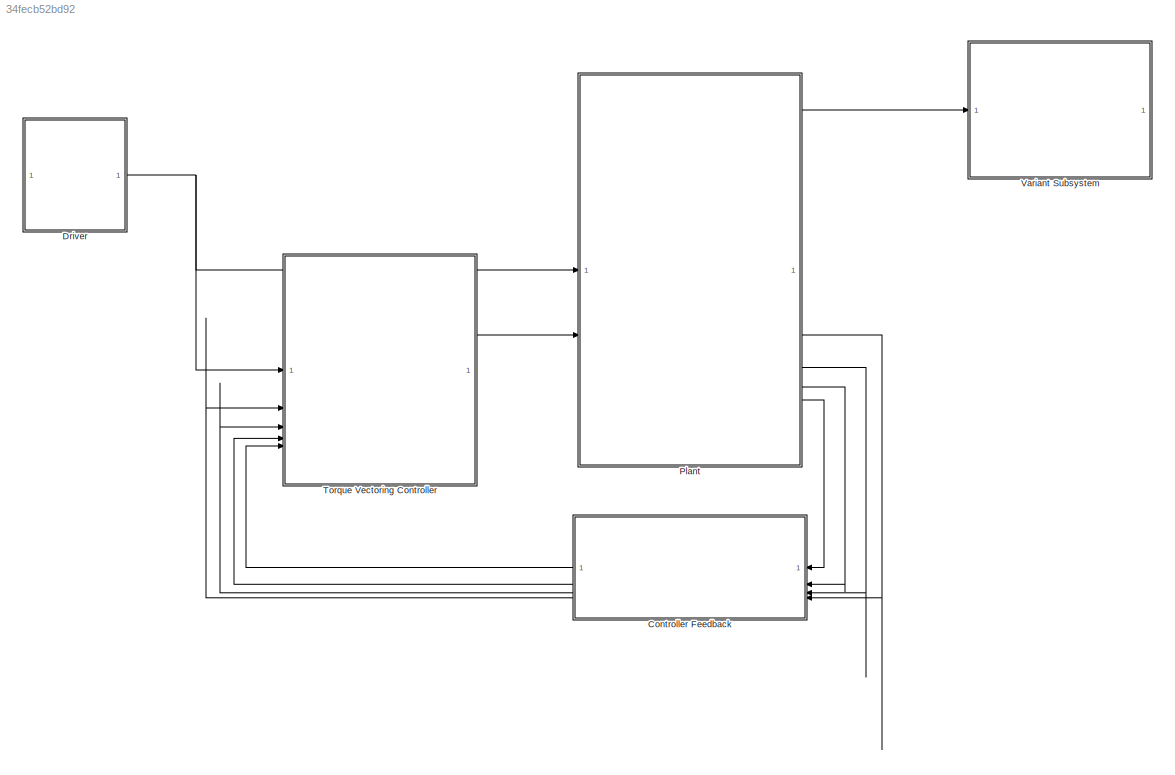
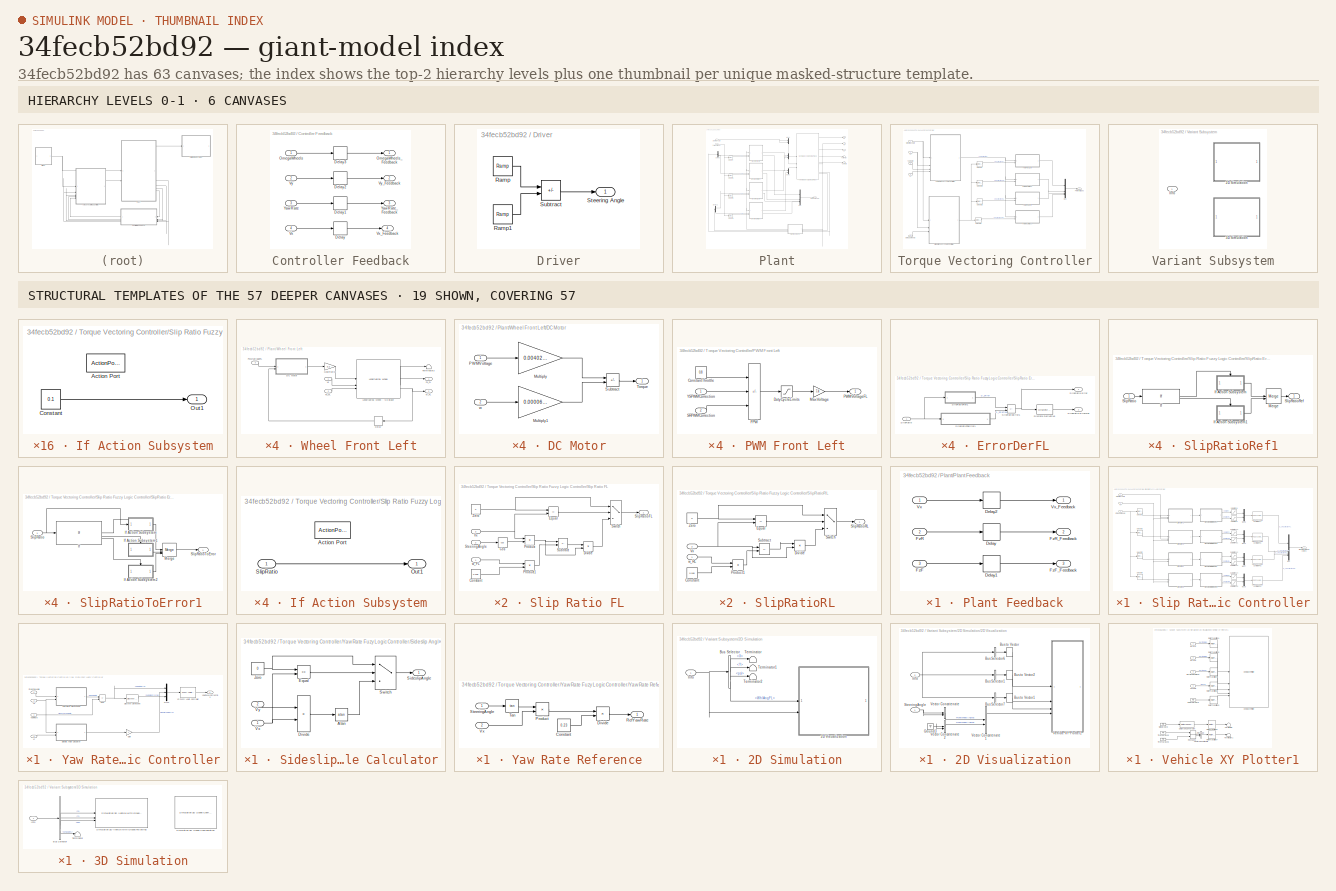
[diagram: thumbnail index - top-2 hierarchy levels (6 canvases) + 19 structural-template representatives of the remaining 57 canvases]
MODEL slx_34fecb52bd92
KIND model
CONFIG AbsTol = 1e-3
CONFIG EnableMultiTasking = off
CONFIG FixedStep = 1e-3
CONFIG MaxStep = auto
CONFIG MinStep = auto
CONFIG RelTol = 1e-1
CONFIG SampleTimeConstraint = Unconstrained
CONFIG SolverName = VariableStepAuto
CONFIG StartTime = 0.0
CONFIG StopTime = 25
BLOCK [SubSystem] Controller Feedback
BLOCK [Delay] Controller Feedback/Delay
  DelayLength = 1
  InputPortMap = u0
  SampleTime = 1e-3
BLOCK [Delay] Controller Feedback/Delay1
  DelayLength = 1
  InputPortMap = u0
  SampleTime = 1e-3
BLOCK [Delay] Controller Feedback/Delay2
  DelayLength = 1
  InputPortMap = u0
  SampleTime = 1e-3
BLOCK [Delay] Controller Feedback/Delay3
  DelayLength = 1
  InputPortMap = u0
  SampleTime = 1e-3
BLOCK [Inport] Controller Feedback/OmegaWheels
BLOCK [Outport] Controller Feedback/OmegaWheels_Feedback
BLOCK [Inport] Controller Feedback/Vx
  Port = 4
BLOCK [Outport] Controller Feedback/Vx_Feedback
  Port = 4
BLOCK [Inport] Controller Feedback/Vy
  Port = 2
BLOCK [Outport] Controller Feedback/Vy_Feedback
  Port = 2
BLOCK [Inport] Controller Feedback/YawRate
  Port = 3
BLOCK [Outport] Controller Feedback/YawRate_Feedback
  Port = 3
BLOCK [SubSystem] Driver
BLOCK [Reference] Driver/Ramp  REF=simulink/Sources/Ramp
  SourceBlock = simulink/Sources/Ramp
  SourceType = Ramp
BLOCK [Reference] Driver/Ramp1  REF=simulink/Sources/Ramp
  SourceBlock = simulink/Sources/Ramp
  SourceType = Ramp
BLOCK [Outport] Driver/Steering Angle
  SampleTime = 1e-3
BLOCK [Sum] Driver/Subtract
  IconShape = rectangular
  Inputs = +-
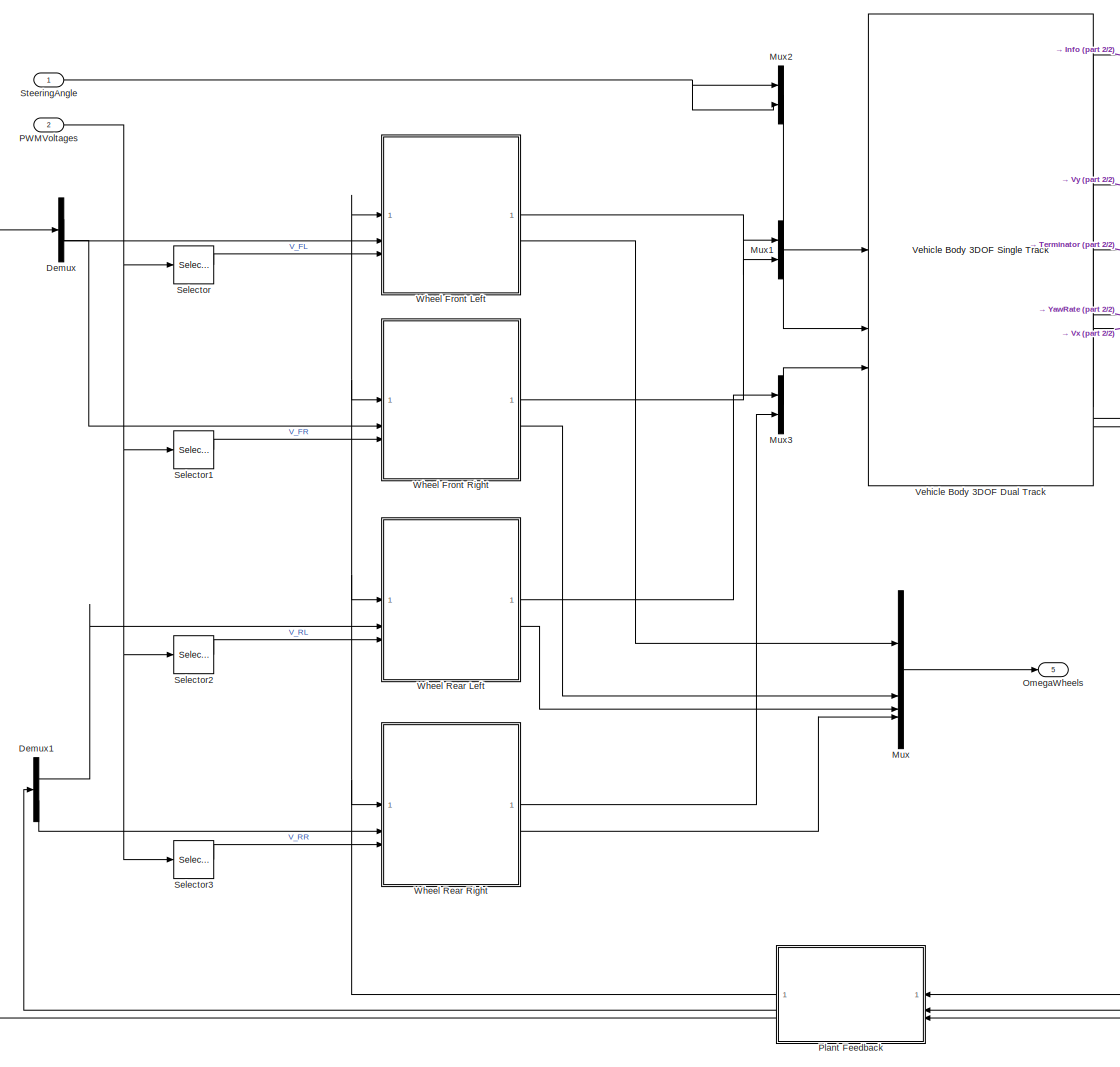
[diagram: Plant - part 1/2, most of the canvas]
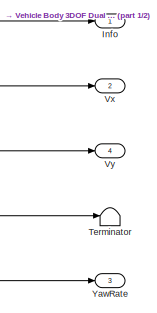
[diagram: Plant - part 2/2, top right region]
BLOCK [SubSystem] Plant
BLOCK [Demux] Plant/Demux
  Outputs = 2
BLOCK [Demux] Plant/Demux1
  Outputs = 2
BLOCK [Outport] Plant/Info
BLOCK [Mux] Plant/Mux
  DisplayOption = bar
BLOCK [Mux] Plant/Mux1
  DisplayOption = bar
  Inputs = 2
BLOCK [Mux] Plant/Mux2
  DisplayOption = bar
  Inputs = 2
BLOCK [Mux] Plant/Mux3
  DisplayOption = bar
  Inputs = 2
BLOCK [Outport] Plant/OmegaWheels
  Port = 5
BLOCK [Inport] Plant/PWMVoltages
  Port = 2
BLOCK [SubSystem] Plant/Plant Feedback
BLOCK [Delay] Plant/Plant Feedback/Delay
  DelayLength = 1
  InputPortMap = u0
BLOCK [Delay] Plant/Plant Feedback/Delay1
  DelayLength = 1
  InputPortMap = u0
BLOCK [Delay] Plant/Plant Feedback/Delay2
  DelayLength = 1
  InputPortMap = u0
BLOCK [Inport] Plant/Plant Feedback/FzF
  Port = 3
BLOCK [Outport] Plant/Plant Feedback/FzF_Feedback
  Port = 3
BLOCK [Inport] Plant/Plant Feedback/FzR
  Port = 2
BLOCK [Outport] Plant/Plant Feedback/FzR_Feedback
  Port = 2
BLOCK [Inport] Plant/Plant Feedback/Vx
BLOCK [Outport] Plant/Plant Feedback/Vx_Feedback
BLOCK [Selector] Plant/Selector
  IndexOptions = Index vector (dialog)
  Indices = 1
  InputPortWidth = 4
  OutputSizes = 1
BLOCK [Selector] Plant/Selector1
  IndexOptions = Index vector (dialog)
  Indices = 2
  InputPortWidth = 4
  OutputSizes = 1
BLOCK [Selector] Plant/Selector2
  IndexOptions = Index vector (dialog)
  Indices = 3
  InputPortWidth = 4
  OutputSizes = 1
BLOCK [Selector] Plant/Selector3
  IndexOptions = Index vector (dialog)
  Indices = 4
  InputPortWidth = 4
  OutputSizes = 1
BLOCK [Inport] Plant/SteeringAngle
BLOCK [Terminator] Plant/Terminator
BLOCK [Reference] Plant/Vehicle Body 3DOF Dual Track  REF=autolibshared/Vehicle Body 3DOF Single Track
  LibrarySourceBlock = vehdynlibeom/Vehicle Body 3DOF Single Track
  SourceBlock = autolibshared/Vehicle Body 3DOF Single Track
  SourceType = Vehicle Body 3DOF Lateral
BLOCK [Outport] Plant/Vx
  Port = 2
BLOCK [Outport] Plant/Vy
  Port = 4
BLOCK [SubSystem] Plant/Wheel Front Left
BLOCK [SubSystem] Plant/Wheel Front Left/DC Motor
BLOCK [Gain] Plant/Wheel Front Left/DC Motor/Multiply
  Gain = 0.00402273
BLOCK [Gain] Plant/Wheel Front Left/DC Motor/Multiply1
  Gain = 0.00006835
BLOCK [Inport] Plant/Wheel Front Left/DC Motor/PWMVoltage
BLOCK [Sum] Plant/Wheel Front Left/DC Motor/Subtract
  IconShape = rectangular
  Inputs = +-
BLOCK [Outport] Plant/Wheel Front Left/DC Motor/Torque
BLOCK [Inport] Plant/Wheel Front Left/DC Motor/w
  Port = 2
BLOCK [Delay] Plant/Wheel Front Left/Delay
  DelayLength = 1
  InputPortMap = u0
  NameLocation = top
BLOCK [Outport] Plant/Wheel Front Left/Fx_FL
BLOCK [Inport] Plant/Wheel Front Left/Fz_FL
  Port = 2
BLOCK [Gain] Plant/Wheel Front Left/GearRatio
  Gain = 3.2
BLOCK [Reference] Plant/Wheel Front Left/Longitudinal Wheel - No Brake  REF=autolibshared/Longitudinal Wheel
  LibrarySourceBlock = vehdynlibtire/Longitudinal Wheel
  SourceBlock = autolibshared/Longitudinal Wheel
  SourceType = Longitudinal Wheel
BLOCK [Inport] Plant/Wheel Front Left/PWMVoltageFL
  Port = 3
BLOCK [Terminator] Plant/Wheel Front Left/Terminator3
BLOCK [Inport] Plant/Wheel Front Left/Vx
BLOCK [Outport] Plant/Wheel Front Left/w_FL
  Port = 2
BLOCK [SubSystem] Plant/Wheel Front Right
BLOCK [SubSystem] Plant/Wheel Front Right/DC Motor
BLOCK [Gain] Plant/Wheel Front Right/DC Motor/Multiply
  Gain = 0.00402273
BLOCK [Gain] Plant/Wheel Front Right/DC Motor/Multiply1
  Gain = 0.00006835
BLOCK [Inport] Plant/Wheel Front Right/DC Motor/PWMVoltage
BLOCK [Sum] Plant/Wheel Front Right/DC Motor/Subtract
  IconShape = rectangular
  Inputs = +-
BLOCK [Outport] Plant/Wheel Front Right/DC Motor/Torque
BLOCK [Inport] Plant/Wheel Front Right/DC Motor/w
  Port = 2
BLOCK [Delay] Plant/Wheel Front Right/Delay
  DelayLength = 1
  InputPortMap = u0
  NameLocation = top
BLOCK [Outport] Plant/Wheel Front Right/Fx_FR
BLOCK [Inport] Plant/Wheel Front Right/Fz_FR
  Port = 2
BLOCK [Gain] Plant/Wheel Front Right/GearRatio
  Gain = 3.2
BLOCK [Reference] Plant/Wheel Front Right/Longitudinal Wheel - No Brake  REF=autolibshared/Longitudinal Wheel
  LibrarySourceBlock = vehdynlibtire/Longitudinal Wheel
  SourceBlock = autolibshared/Longitudinal Wheel
  SourceType = Longitudinal Wheel
BLOCK [Inport] Plant/Wheel Front Right/PWMVoltageFR
  Port = 3
BLOCK [Terminator] Plant/Wheel Front Right/Terminator3
BLOCK [Inport] Plant/Wheel Front Right/Vx
BLOCK [Outport] Plant/Wheel Front Right/w_FR
  Port = 2
BLOCK [SubSystem] Plant/Wheel Rear Left
BLOCK [SubSystem] Plant/Wheel Rear Left/DC Motor
BLOCK [Gain] Plant/Wheel Rear Left/DC Motor/Multiply
  Gain = 0.00402273
BLOCK [Gain] Plant/Wheel Rear Left/DC Motor/Multiply1
  Gain = 0.00006835
BLOCK [Inport] Plant/Wheel Rear Left/DC Motor/PWMVoltage
BLOCK [Sum] Plant/Wheel Rear Left/DC Motor/Subtract
  IconShape = rectangular
  Inputs = +-
BLOCK [Outport] Plant/Wheel Rear Left/DC Motor/Torque
BLOCK [Inport] Plant/Wheel Rear Left/DC Motor/w
  Port = 2
BLOCK [Delay] Plant/Wheel Rear Left/Delay
  DelayLength = 1
  InputPortMap = u0
  NameLocation = top
BLOCK [Outport] Plant/Wheel Rear Left/Fx_RL
BLOCK [Inport] Plant/Wheel Rear Left/Fz_RL
  Port = 2
BLOCK [Gain] Plant/Wheel Rear Left/GearRatio
  Gain = 3.2
BLOCK [Reference] Plant/Wheel Rear Left/Longitudinal Wheel - No Brake  REF=autolibshared/Longitudinal Wheel
  LibrarySourceBlock = vehdynlibtire/Longitudinal Wheel
  SourceBlock = autolibshared/Longitudinal Wheel
  SourceType = Longitudinal Wheel
BLOCK [Inport] Plant/Wheel Rear Left/PWMVoltageRL
  Port = 3
BLOCK [Terminator] Plant/Wheel Rear Left/Terminator3
BLOCK [Inport] Plant/Wheel Rear Left/Vx
BLOCK [Outport] Plant/Wheel Rear Left/w_RL
  Port = 2
BLOCK [SubSystem] Plant/Wheel Rear Right
BLOCK [SubSystem] Plant/Wheel Rear Right/DC Motor
BLOCK [Gain] Plant/Wheel Rear Right/DC Motor/Multiply
  Gain = 0.00402273
BLOCK [Gain] Plant/Wheel Rear Right/DC Motor/Multiply1
  Gain = 0.00006835
BLOCK [Inport] Plant/Wheel Rear Right/DC Motor/PWMVoltage
BLOCK [Sum] Plant/Wheel Rear Right/DC Motor/Subtract
  IconShape = rectangular
  Inputs = +-
BLOCK [Outport] Plant/Wheel Rear Right/DC Motor/Torque
BLOCK [Inport] Plant/Wheel Rear Right/DC Motor/w
  Port = 2
BLOCK [Delay] Plant/Wheel Rear Right/Delay
  DelayLength = 1
  InputPortMap = u0
  NameLocation = top
BLOCK [Outport] Plant/Wheel Rear Right/Fx_RR
BLOCK [Inport] Plant/Wheel Rear Right/Fz_RR
  Port = 2
BLOCK [Gain] Plant/Wheel Rear Right/GearRatio
  Gain = 3.2
BLOCK [Reference] Plant/Wheel Rear Right/Longitudinal Wheel - No Brake  REF=autolibshared/Longitudinal Wheel
  LibrarySourceBlock = vehdynlibtire/Longitudinal Wheel
  SourceBlock = autolibshared/Longitudinal Wheel
  SourceType = Longitudinal Wheel
BLOCK [Inport] Plant/Wheel Rear Right/PWMVoltageRR
  Port = 3
BLOCK [Terminator] Plant/Wheel Rear Right/Terminator3
BLOCK [Inport] Plant/Wheel Rear Right/Vx
BLOCK [Outport] Plant/Wheel Rear Right/w_RR
  Port = 2
BLOCK [Outport] Plant/YawRate
  Port = 3
BLOCK [SubSystem] Torque Vectoring Controller
BLOCK [Mux] Torque Vectoring Controller/Mux
  DisplayOption = bar
BLOCK [Inport] Torque Vectoring Controller/OmegaWheels
  Port = 5
BLOCK [SubSystem] Torque Vectoring Controller/PWM Front Left
BLOCK [Constant] Torque Vectoring Controller/PWM Front Left/ConstantThrottle
  Value = 0.8
BLOCK [Saturate] Torque Vectoring Controller/PWM Front Left/DutyCycleLimits
  LowerLimit = -1
  UpperLimit = 1
  ZeroCross = off
BLOCK [Sum] Torque Vectoring Controller/PWM Front Left/FPW
  IconShape = rectangular
  Inputs = +-+
BLOCK [Gain] Torque Vectoring Controller/PWM Front Left/MaxVoltage
  Gain = 7.4
BLOCK [Outport] Torque Vectoring Controller/PWM Front Left/PWMVoltageFL
BLOCK [Inport] Torque Vectoring Controller/PWM Front Left/SRPWMCorrection
  Port = 2
BLOCK [Inport] Torque Vectoring Controller/PWM Front Left/YSPWMCorrection
BLOCK [SubSystem] Torque Vectoring Controller/PWM Front Right
BLOCK [Constant] Torque Vectoring Controller/PWM Front Right/ConstantThrottle
  Value = 0.8
BLOCK [Saturate] Torque Vectoring Controller/PWM Front Right/DutyCycleLimits
  LowerLimit = -1
  UpperLimit = 1
  ZeroCross = off
BLOCK [Sum] Torque Vectoring Controller/PWM Front Right/FPW
  IconShape = rectangular
  Inputs = +++
BLOCK [Gain] Torque Vectoring Controller/PWM Front Right/MaxVoltage
  Gain = 7.4
BLOCK [Outport] Torque Vectoring Controller/PWM Front Right/PWMVoltageFR
BLOCK [Inport] Torque Vectoring Controller/PWM Front Right/SRPWMCorrection
  Port = 2
BLOCK [Inport] Torque Vectoring Controller/PWM Front Right/YSPWMCorrection
BLOCK [SubSystem] Torque Vectoring Controller/PWM Rear Left
BLOCK [Constant] Torque Vectoring Controller/PWM Rear Left/ConstantThrottle
  Value = 0.8
BLOCK [Saturate] Torque Vectoring Controller/PWM Rear Left/DutyCycleLimits
  LowerLimit = -1
  UpperLimit = 1
  ZeroCross = off
BLOCK [Sum] Torque Vectoring Controller/PWM Rear Left/FPW
  IconShape = rectangular
  Inputs = +-+
BLOCK [Gain] Torque Vectoring Controller/PWM Rear Left/MaxVoltage
  Gain = 7.4
BLOCK [Outport] Torque Vectoring Controller/PWM Rear Left/PWMVoltageRL
BLOCK [Inport] Torque Vectoring Controller/PWM Rear Left/SRPWMCorrection
  Port = 2
BLOCK [Inport] Torque Vectoring Controller/PWM Rear Left/YSPWMCorrection
BLOCK [SubSystem] Torque Vectoring Controller/PWM Rear Right
BLOCK [Constant] Torque Vectoring Controller/PWM Rear Right/ConstantThrottle
  Value = 0.8
BLOCK [Saturate] Torque Vectoring Controller/PWM Rear Right/DutyCycleLimits
  LowerLimit = -1
  UpperLimit = 1
  ZeroCross = off
BLOCK [Sum] Torque Vectoring Controller/PWM Rear Right/FPW
  IconShape = rectangular
  Inputs = +++
BLOCK [Gain] Torque Vectoring Controller/PWM Rear Right/MaxVoltage
  Gain = 7.4
BLOCK [Outport] Torque Vectoring Controller/PWM Rear Right/PWMVoltageRR
BLOCK [Inport] Torque Vectoring Controller/PWM Rear Right/SRPWMCorrection
  Port = 2
BLOCK [Inport] Torque Vectoring Controller/PWM Rear Right/YSPWMCorrection
BLOCK [Outport] Torque Vectoring Controller/PWMVoltages
BLOCK [Selector] Torque Vectoring Controller/Selector
  IndexOptions = Index vector (dialog)
  Indices = 1
  InputPortWidth = 4
  OutputSizes = 1
BLOCK [Selector] Torque Vectoring Controller/Selector1
  IndexOptions = Index vector (dialog)
  Indices = 2
  InputPortWidth = 4
  OutputSizes = 1
BLOCK [Selector] Torque Vectoring Controller/Selector2
  IndexOptions = Index vector (dialog)
  Indices = 3
  InputPortWidth = 4
  OutputSizes = 1
BLOCK [Selector] Torque Vectoring Controller/Selector3
  IndexOptions = Index vector (dialog)
  Indices = 4
  InputPortWidth = 4
  OutputSizes = 1
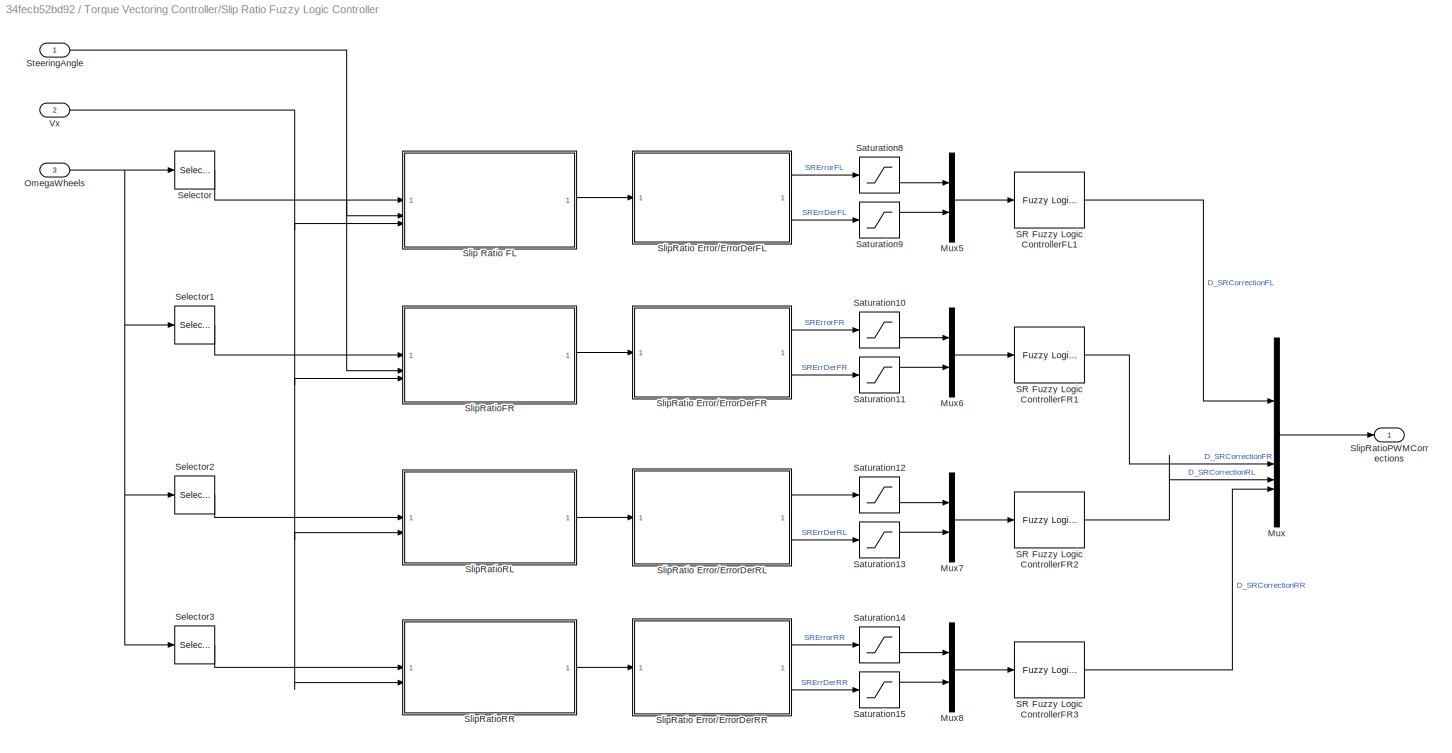
BLOCK [SubSystem] Torque Vectoring Controller/Slip Ratio Fuzzy Logic Controller
BLOCK [Mux] Torque Vectoring Controller/Slip Ratio Fuzzy Logic Controller/Mux
  DisplayOption = bar
BLOCK [Mux] Torque Vectoring Controller/Slip Ratio Fuzzy Logic Controller/Mux5
  DisplayOption = bar
  Inputs = 2
BLOCK [Mux] Torque Vectoring Controller/Slip Ratio Fuzzy Logic Controller/Mux6
  DisplayOption = bar
  Inputs = 2
BLOCK [Mux] Torque Vectoring Controller/Slip Ratio Fuzzy Logic Controller/Mux7
  DisplayOption = bar
  Inputs = 2
BLOCK [Mux] Torque Vectoring Controller/Slip Ratio Fuzzy Logic Controller/Mux8
  DisplayOption = bar
  Inputs = 2
BLOCK [Inport] Torque Vectoring Controller/Slip Ratio Fuzzy Logic Controller/OmegaWheels
  Port = 3
BLOCK [Reference] Torque Vectoring Controller/Slip Ratio Fuzzy Logic Controller/SR Fuzzy Logic ControllerFL1  REF=fuzblock/Fuzzy Logic   (lib defined in mdl_858b3b3e7478)
Controller
  SourceBlock = fuzblock/Fuzzy Logic \nController
  SourceType = Fuzzy Inference System
BLOCK [Reference] Torque Vectoring Controller/Slip Ratio Fuzzy Logic Controller/SR Fuzzy Logic ControllerFR1  REF=fuzblock/Fuzzy Logic   (lib defined in mdl_858b3b3e7478)
Controller
  SourceBlock = fuzblock/Fuzzy Logic \nController
  SourceType = Fuzzy Inference System
BLOCK [Reference] Torque Vectoring Controller/Slip Ratio Fuzzy Logic Controller/SR Fuzzy Logic ControllerFR2  REF=fuzblock/Fuzzy Logic   (lib defined in mdl_858b3b3e7478)
Controller
  SourceBlock = fuzblock/Fuzzy Logic \nController
  SourceType = Fuzzy Inference System
BLOCK [Reference] Torque Vectoring Controller/Slip Ratio Fuzzy Logic Controller/SR Fuzzy Logic ControllerFR3  REF=fuzblock/Fuzzy Logic   (lib defined in mdl_858b3b3e7478)
Controller
  SourceBlock = fuzblock/Fuzzy Logic \nController
  SourceType = Fuzzy Inference System
BLOCK [Saturate] Torque Vectoring Controller/Slip Ratio Fuzzy Logic Controller/Saturation10
  LowerLimit = -30
  UpperLimit = 30
BLOCK [Saturate] Torque Vectoring Controller/Slip Ratio Fuzzy Logic Controller/Saturation11
  LowerLimit = -3e4
  UpperLimit = 3e4
BLOCK [Saturate] Torque Vectoring Controller/Slip Ratio Fuzzy Logic Controller/Saturation12
  LowerLimit = -30
  UpperLimit = 30
BLOCK [Saturate] Torque Vectoring Controller/Slip Ratio Fuzzy Logic Controller/Saturation13
  LowerLimit = -3e4
  UpperLimit = 3e4
BLOCK [Saturate] Torque Vectoring Controller/Slip Ratio Fuzzy Logic Controller/Saturation14
  LowerLimit = -30
  UpperLimit = 30
BLOCK [Saturate] Torque Vectoring Controller/Slip Ratio Fuzzy Logic Controller/Saturation15
  LowerLimit = -3e4
  UpperLimit = 3e4
BLOCK [Saturate] Torque Vectoring Controller/Slip Ratio Fuzzy Logic Controller/Saturation8
  LowerLimit = -30
  UpperLimit = 30
BLOCK [Saturate] Torque Vectoring Controller/Slip Ratio Fuzzy Logic Controller/Saturation9
  LowerLimit = -3e4
  UpperLimit = 3e4
BLOCK [Selector] Torque Vectoring Controller/Slip Ratio Fuzzy Logic Controller/Selector
  IndexOptions = Index vector (dialog)
  Indices = 1
  InputPortWidth = 4
  OutputSizes = 1
BLOCK [Selector] Torque Vectoring Controller/Slip Ratio Fuzzy Logic Controller/Selector1
  IndexOptions = Index vector (dialog)
  Indices = 2
  InputPortWidth = 4
  OutputSizes = 1
BLOCK [Selector] Torque Vectoring Controller/Slip Ratio Fuzzy Logic Controller/Selector2
  IndexOptions = Index vector (dialog)
  Indices = 3
  InputPortWidth = 4
  OutputSizes = 1
BLOCK [Selector] Torque Vectoring Controller/Slip Ratio Fuzzy Logic Controller/Selector3
  IndexOptions = Index vector (dialog)
  Indices = 4
  InputPortWidth = 4
  OutputSizes = 1
BLOCK [SubSystem] Torque Vectoring Controller/Slip Ratio Fuzzy Logic Controller/Slip Ratio FL
BLOCK [Constant] Torque Vectoring Controller/Slip Ratio Fuzzy Logic Controller/Slip Ratio FL/Constant
  Value = 0.048
BLOCK [Trigonometry] Torque Vectoring Controller/Slip Ratio Fuzzy Logic Controller/Slip Ratio FL/Cos
  Operator = cos
BLOCK [Product] Torque Vectoring Controller/Slip Ratio Fuzzy Logic Controller/Slip Ratio FL/Divide
  Inputs = */
BLOCK [RelationalOperator] Torque Vectoring Controller/Slip Ratio Fuzzy Logic Controller/Slip Ratio FL/Equal
  InputSameDT = off
  Operator = ==
  OutDataTypeStr = boolean
  RndMeth = Simplest
BLOCK [Product] Torque Vectoring Controller/Slip Ratio Fuzzy Logic Controller/Slip Ratio FL/Product
BLOCK [Product] Torque Vectoring Controller/Slip Ratio Fuzzy Logic Controller/Slip Ratio FL/Product1
BLOCK [Outport] Torque Vectoring Controller/Slip Ratio Fuzzy Logic Controller/Slip Ratio FL/SlipRatioFL
BLOCK [Inport] Torque Vectoring Controller/Slip Ratio Fuzzy Logic Controller/Slip Ratio FL/SteeringAngle
  Port = 2
BLOCK [Sum] Torque Vectoring Controller/Slip Ratio Fuzzy Logic Controller/Slip Ratio FL/Subtract
  IconShape = rectangular
  Inputs = -+
BLOCK [Switch] Torque Vectoring Controller/Slip Ratio Fuzzy Logic Controller/Slip Ratio FL/Switch
  Criteria = u2 > Threshold
  InputSameDT = off
  SaturateOnIntegerOverflow = off
BLOCK [Inport] Torque Vectoring Controller/Slip Ratio Fuzzy Logic Controller/Slip Ratio FL/Vx
  Port = 3
BLOCK [Constant] Torque Vectoring Controller/Slip Ratio Fuzzy Logic Controller/Slip Ratio FL/Zero
  OutDataTypeStr = Inherit: Inherit via back propagation
  Value = 0
BLOCK [Inport] Torque Vectoring Controller/Slip Ratio Fuzzy Logic Controller/Slip Ratio FL/w_FL
BLOCK [SubSystem] Torque Vectoring Controller/Slip Ratio Fuzzy Logic Controller/SlipRatio Error//ErrorDerFL
BLOCK [Reference] Torque Vectoring Controller/Slip Ratio Fuzzy Logic Controller/SlipRatio Error//ErrorDerFL/Discrete Derivative  REF=simulink/Discrete/Discrete Derivative
  SourceBlock = simulink/Discrete/Discrete Derivative
  SourceType = Discrete Derivative
BLOCK [Inport] Torque Vectoring Controller/Slip Ratio Fuzzy Logic Controller/SlipRatio Error//ErrorDerFL/SlipRatio
BLOCK [Outport] Torque Vectoring Controller/Slip Ratio Fuzzy Logic Controller/SlipRatio Error//ErrorDerFL/SlipRatio Error
BLOCK [Outport] Torque Vectoring Controller/Slip Ratio Fuzzy Logic Controller/SlipRatio Error//ErrorDerFL/SlipRatio ErrorDer
  Port = 2
BLOCK [Sum] Torque Vectoring Controller/Slip Ratio Fuzzy Logic Controller/SlipRatio Error//ErrorDerFL/SlipRatioError1
  IconShape = rectangular
  Inputs = +-
BLOCK [SubSystem] Torque Vectoring Controller/Slip Ratio Fuzzy Logic Controller/SlipRatio Error//ErrorDerFL/SlipRatioRef1
BLOCK [If] Torque Vectoring Controller/Slip Ratio Fuzzy Logic Controller/SlipRatio Error//ErrorDerFL/SlipRatioRef1/If
  IfExpression = u1 >= 0
BLOCK [SubSystem] Torque Vectoring Controller/Slip Ratio Fuzzy Logic Controller/SlipRatio Error//ErrorDerFL/SlipRatioRef1/If Action Subsystem
  TreatAsAtomicUnit = on
BLOCK [ActionPort] Torque Vectoring Controller/Slip Ratio Fuzzy Logic Controller/SlipRatio Error//ErrorDerFL/SlipRatioRef1/If Action Subsystem/Action Port
  ActionPortLabel = if(u1 >= 0)
BLOCK [Constant] Torque Vectoring Controller/Slip Ratio Fuzzy Logic Controller/SlipRatio Error//ErrorDerFL/SlipRatioRef1/If Action Subsystem/Constant
  Value = 0.1
BLOCK [Outport] Torque Vectoring Controller/Slip Ratio Fuzzy Logic Controller/SlipRatio Error//ErrorDerFL/SlipRatioRef1/If Action Subsystem/Out1
BLOCK [SubSystem] Torque Vectoring Controller/Slip Ratio Fuzzy Logic Controller/SlipRatio Error//ErrorDerFL/SlipRatioRef1/If Action Subsystem1
  TreatAsAtomicUnit = on
BLOCK [ActionPort] Torque Vectoring Controller/Slip Ratio Fuzzy Logic Controller/SlipRatio Error//ErrorDerFL/SlipRatioRef1/If Action Subsystem1/Action Port
  ActionPortLabel = else
BLOCK [Constant] Torque Vectoring Controller/Slip Ratio Fuzzy Logic Controller/SlipRatio Error//ErrorDerFL/SlipRatioRef1/If Action Subsystem1/Constant
  Value = -0.1
BLOCK [Outport] Torque Vectoring Controller/Slip Ratio Fuzzy Logic Controller/SlipRatio Error//ErrorDerFL/SlipRatioRef1/If Action Subsystem1/Out1
BLOCK [Merge] Torque Vectoring Controller/Slip Ratio Fuzzy Logic Controller/SlipRatio Error//ErrorDerFL/SlipRatioRef1/Merge
BLOCK [Inport] Torque Vectoring Controller/Slip Ratio Fuzzy Logic Controller/SlipRatio Error//ErrorDerFL/SlipRatioRef1/SlipRatio
BLOCK [Outport] Torque Vectoring Controller/Slip Ratio Fuzzy Logic Controller/SlipRatio Error//ErrorDerFL/SlipRatioRef1/SlipRatioRef
BLOCK [SubSystem] Torque Vectoring Controller/Slip Ratio Fuzzy Logic Controller/SlipRatio Error//ErrorDerFL/SlipRatioToError1
BLOCK [If] Torque Vectoring Controller/Slip Ratio Fuzzy Logic Controller/SlipRatio Error//ErrorDerFL/SlipRatioToError1/If
  ElseIfExpressions = u1 <= 0.1 & u1 >= 0, u1 >= -0.1 & u1 < 0
  IfExpression = u1 > 0.1 | u1 < -0.1
  ShowElse = off
BLOCK [SubSystem] Torque Vectoring Controller/Slip Ratio Fuzzy Logic Controller/SlipRatio Error//ErrorDerFL/SlipRatioToError1/If Action Subsystem
  TreatAsAtomicUnit = on
BLOCK [ActionPort] Torque Vectoring Controller/Slip Ratio Fuzzy Logic Controller/SlipRatio Error//ErrorDerFL/SlipRatioToError1/If Action Subsystem/Action Port
  ActionPortLabel = if(u1 > 0.1 | u1 < -0.1)
BLOCK [Outport] Torque Vectoring Controller/Slip Ratio Fuzzy Logic Controller/SlipRatio Error//ErrorDerFL/SlipRatioToError1/If Action Subsystem/Out1
BLOCK [Inport] Torque Vectoring Controller/Slip Ratio Fuzzy Logic Controller/SlipRatio Error//ErrorDerFL/SlipRatioToError1/If Action Subsystem/SlipRatio
BLOCK [SubSystem] Torque Vectoring Controller/Slip Ratio Fuzzy Logic Controller/SlipRatio Error//ErrorDerFL/SlipRatioToError1/If Action Subsystem1
  TreatAsAtomicUnit = on
BLOCK [ActionPort] Torque Vectoring Controller/Slip Ratio Fuzzy Logic Controller/SlipRatio Error//ErrorDerFL/SlipRatioToError1/If Action Subsystem1/Action Port
  ActionPortLabel = elseif( u1 <= 0.1 & u1 >= 0)
BLOCK [Constant] Torque Vectoring Controller/Slip Ratio Fuzzy Logic Controller/SlipRatio Error//ErrorDerFL/SlipRatioToError1/If Action Subsystem1/Constant
  Value = 0.1
BLOCK [Outport] Torque Vectoring Controller/Slip Ratio Fuzzy Logic Controller/SlipRatio Error//ErrorDerFL/SlipRatioToError1/If Action Subsystem1/Out1
BLOCK [SubSystem] Torque Vectoring Controller/Slip Ratio Fuzzy Logic Controller/SlipRatio Error//ErrorDerFL/SlipRatioToError1/If Action Subsystem2
  TreatAsAtomicUnit = on
BLOCK [ActionPort] Torque Vectoring Controller/Slip Ratio Fuzzy Logic Controller/SlipRatio Error//ErrorDerFL/SlipRatioToError1/If Action Subsystem2/Action Port
  ActionPortLabel = elseif( u1 >= -0.1 & u1 < 0)
BLOCK [Constant] Torque Vectoring Controller/Slip Ratio Fuzzy Logic Controller/SlipRatio Error//ErrorDerFL/SlipRatioToError1/If Action Subsystem2/Constant
  Value = -0.1
BLOCK [Outport] Torque Vectoring Controller/Slip Ratio Fuzzy Logic Controller/SlipRatio Error//ErrorDerFL/SlipRatioToError1/If Action Subsystem2/Out1
BLOCK [Merge] Torque Vectoring Controller/Slip Ratio Fuzzy Logic Controller/SlipRatio Error//ErrorDerFL/SlipRatioToError1/Merge
  Inputs = 3
BLOCK [Inport] Torque Vectoring Controller/Slip Ratio Fuzzy Logic Controller/SlipRatio Error//ErrorDerFL/SlipRatioToError1/SlipRatio
BLOCK [Outport] Torque Vectoring Controller/Slip Ratio Fuzzy Logic Controller/SlipRatio Error//ErrorDerFL/SlipRatioToError1/SlipRatioToError
BLOCK [SubSystem] Torque Vectoring Controller/Slip Ratio Fuzzy Logic Controller/SlipRatio Error//ErrorDerFR
BLOCK [Reference] Torque Vectoring Controller/Slip Ratio Fuzzy Logic Controller/SlipRatio Error//ErrorDerFR/Discrete Derivative1  REF=simulink/Discrete/Discrete Derivative
  SourceBlock = simulink/Discrete/Discrete Derivative
  SourceType = Discrete Derivative
BLOCK [Inport] Torque Vectoring Controller/Slip Ratio Fuzzy Logic Controller/SlipRatio Error//ErrorDerFR/SlipRatio
BLOCK [Outport] Torque Vectoring Controller/Slip Ratio Fuzzy Logic Controller/SlipRatio Error//ErrorDerFR/SlipRatio Error
BLOCK [Outport] Torque Vectoring Controller/Slip Ratio Fuzzy Logic Controller/SlipRatio Error//ErrorDerFR/SlipRatio ErrorDer
  Port = 2
BLOCK [Sum] Torque Vectoring Controller/Slip Ratio Fuzzy Logic Controller/SlipRatio Error//ErrorDerFR/SlipRatioError1
  IconShape = rectangular
  Inputs = +-
BLOCK [SubSystem] Torque Vectoring Controller/Slip Ratio Fuzzy Logic Controller/SlipRatio Error//ErrorDerFR/SlipRatioRef1
BLOCK [If] Torque Vectoring Controller/Slip Ratio Fuzzy Logic Controller/SlipRatio Error//ErrorDerFR/SlipRatioRef1/If
  IfExpression = u1 >= 0
BLOCK [SubSystem] Torque Vectoring Controller/Slip Ratio Fuzzy Logic Controller/SlipRatio Error//ErrorDerFR/SlipRatioRef1/If Action Subsystem
  TreatAsAtomicUnit = on
BLOCK [ActionPort] Torque Vectoring Controller/Slip Ratio Fuzzy Logic Controller/SlipRatio Error//ErrorDerFR/SlipRatioRef1/If Action Subsystem/Action Port
  ActionPortLabel = if(u1 >= 0)
BLOCK [Constant] Torque Vectoring Controller/Slip Ratio Fuzzy Logic Controller/SlipRatio Error//ErrorDerFR/SlipRatioRef1/If Action Subsystem/Constant
  Value = 0.1
BLOCK [Outport] Torque Vectoring Controller/Slip Ratio Fuzzy Logic Controller/SlipRatio Error//ErrorDerFR/SlipRatioRef1/If Action Subsystem/Out1
BLOCK [SubSystem] Torque Vectoring Controller/Slip Ratio Fuzzy Logic Controller/SlipRatio Error//ErrorDerFR/SlipRatioRef1/If Action Subsystem1
  TreatAsAtomicUnit = on
BLOCK [ActionPort] Torque Vectoring Controller/Slip Ratio Fuzzy Logic Controller/SlipRatio Error//ErrorDerFR/SlipRatioRef1/If Action Subsystem1/Action Port
  ActionPortLabel = else
BLOCK [Constant] Torque Vectoring Controller/Slip Ratio Fuzzy Logic Controller/SlipRatio Error//ErrorDerFR/SlipRatioRef1/If Action Subsystem1/Constant
  Value = -0.1
BLOCK [Outport] Torque Vectoring Controller/Slip Ratio Fuzzy Logic Controller/SlipRatio Error//ErrorDerFR/SlipRatioRef1/If Action Subsystem1/Out1
BLOCK [Merge] Torque Vectoring Controller/Slip Ratio Fuzzy Logic Controller/SlipRatio Error//ErrorDerFR/SlipRatioRef1/Merge
BLOCK [Inport] Torque Vectoring Controller/Slip Ratio Fuzzy Logic Controller/SlipRatio Error//ErrorDerFR/SlipRatioRef1/SlipRatio
BLOCK [Outport] Torque Vectoring Controller/Slip Ratio Fuzzy Logic Controller/SlipRatio Error//ErrorDerFR/SlipRatioRef1/SlipRatioRef
BLOCK [SubSystem] Torque Vectoring Controller/Slip Ratio Fuzzy Logic Controller/SlipRatio Error//ErrorDerFR/SlipRatioToError1
BLOCK [If] Torque Vectoring Controller/Slip Ratio Fuzzy Logic Controller/SlipRatio Error//ErrorDerFR/SlipRatioToError1/If
  ElseIfExpressions = u1 <= 0.1 & u1 >= 0, u1 >= -0.1 & u1 < 0
  IfExpression = u1 > 0.1 | u1 < -0.1
  ShowElse = off
BLOCK [SubSystem] Torque Vectoring Controller/Slip Ratio Fuzzy Logic Controller/SlipRatio Error//ErrorDerFR/SlipRatioToError1/If Action Subsystem
  TreatAsAtomicUnit = on
BLOCK [ActionPort] Torque Vectoring Controller/Slip Ratio Fuzzy Logic Controller/SlipRatio Error//ErrorDerFR/SlipRatioToError1/If Action Subsystem/Action Port
  ActionPortLabel = if(u1 > 0.1 | u1 < -0.1)
BLOCK [Outport] Torque Vectoring Controller/Slip Ratio Fuzzy Logic Controller/SlipRatio Error//ErrorDerFR/SlipRatioToError1/If Action Subsystem/Out1
BLOCK [Inport] Torque Vectoring Controller/Slip Ratio Fuzzy Logic Controller/SlipRatio Error//ErrorDerFR/SlipRatioToError1/If Action Subsystem/SlipRatio
BLOCK [SubSystem] Torque Vectoring Controller/Slip Ratio Fuzzy Logic Controller/SlipRatio Error//ErrorDerFR/SlipRatioToError1/If Action Subsystem1
  TreatAsAtomicUnit = on
BLOCK [ActionPort] Torque Vectoring Controller/Slip Ratio Fuzzy Logic Controller/SlipRatio Error//ErrorDerFR/SlipRatioToError1/If Action Subsystem1/Action Port
  ActionPortLabel = elseif( u1 <= 0.1 & u1 >= 0)
BLOCK [Constant] Torque Vectoring Controller/Slip Ratio Fuzzy Logic Controller/SlipRatio Error//ErrorDerFR/SlipRatioToError1/If Action Subsystem1/Constant
  Value = 0.1
BLOCK [Outport] Torque Vectoring Controller/Slip Ratio Fuzzy Logic Controller/SlipRatio Error//ErrorDerFR/SlipRatioToError1/If Action Subsystem1/Out1
BLOCK [SubSystem] Torque Vectoring Controller/Slip Ratio Fuzzy Logic Controller/SlipRatio Error//ErrorDerFR/SlipRatioToError1/If Action Subsystem2
  TreatAsAtomicUnit = on
BLOCK [ActionPort] Torque Vectoring Controller/Slip Ratio Fuzzy Logic Controller/SlipRatio Error//ErrorDerFR/SlipRatioToError1/If Action Subsystem2/Action Port
  ActionPortLabel = elseif( u1 >= -0.1 & u1 < 0)
BLOCK [Constant] Torque Vectoring Controller/Slip Ratio Fuzzy Logic Controller/SlipRatio Error//ErrorDerFR/SlipRatioToError1/If Action Subsystem2/Constant
  Value = -0.1
BLOCK [Outport] Torque Vectoring Controller/Slip Ratio Fuzzy Logic Controller/SlipRatio Error//ErrorDerFR/SlipRatioToError1/If Action Subsystem2/Out1
BLOCK [Merge] Torque Vectoring Controller/Slip Ratio Fuzzy Logic Controller/SlipRatio Error//ErrorDerFR/SlipRatioToError1/Merge
  Inputs = 3
BLOCK [Inport] Torque Vectoring Controller/Slip Ratio Fuzzy Logic Controller/SlipRatio Error//ErrorDerFR/SlipRatioToError1/SlipRatio
BLOCK [Outport] Torque Vectoring Controller/Slip Ratio Fuzzy Logic Controller/SlipRatio Error//ErrorDerFR/SlipRatioToError1/SlipRatioToError
BLOCK [SubSystem] Torque Vectoring Controller/Slip Ratio Fuzzy Logic Controller/SlipRatio Error//ErrorDerRL
BLOCK [Reference] Torque Vectoring Controller/Slip Ratio Fuzzy Logic Controller/SlipRatio Error//ErrorDerRL/Discrete Derivative1  REF=simulink/Discrete/Discrete Derivative
  SourceBlock = simulink/Discrete/Discrete Derivative
  SourceType = Discrete Derivative
BLOCK [Inport] Torque Vectoring Controller/Slip Ratio Fuzzy Logic Controller/SlipRatio Error//ErrorDerRL/SlipRatio
BLOCK [Outport] Torque Vectoring Controller/Slip Ratio Fuzzy Logic Controller/SlipRatio Error//ErrorDerRL/SlipRatio Error
BLOCK [Outport] Torque Vectoring Controller/Slip Ratio Fuzzy Logic Controller/SlipRatio Error//ErrorDerRL/SlipRatio ErrorDer
  Port = 2
BLOCK [Sum] Torque Vectoring Controller/Slip Ratio Fuzzy Logic Controller/SlipRatio Error//ErrorDerRL/SlipRatioError1
  IconShape = rectangular
  Inputs = +-
BLOCK [SubSystem] Torque Vectoring Controller/Slip Ratio Fuzzy Logic Controller/SlipRatio Error//ErrorDerRL/SlipRatioRef1
BLOCK [If] Torque Vectoring Controller/Slip Ratio Fuzzy Logic Controller/SlipRatio Error//ErrorDerRL/SlipRatioRef1/If
  IfExpression = u1 >= 0
BLOCK [SubSystem] Torque Vectoring Controller/Slip Ratio Fuzzy Logic Controller/SlipRatio Error//ErrorDerRL/SlipRatioRef1/If Action Subsystem
  TreatAsAtomicUnit = on
BLOCK [ActionPort] Torque Vectoring Controller/Slip Ratio Fuzzy Logic Controller/SlipRatio Error//ErrorDerRL/SlipRatioRef1/If Action Subsystem/Action Port
  ActionPortLabel = if(u1 >= 0)
BLOCK [Constant] Torque Vectoring Controller/Slip Ratio Fuzzy Logic Controller/SlipRatio Error//ErrorDerRL/SlipRatioRef1/If Action Subsystem/Constant
  Value = 0.1
BLOCK [Outport] Torque Vectoring Controller/Slip Ratio Fuzzy Logic Controller/SlipRatio Error//ErrorDerRL/SlipRatioRef1/If Action Subsystem/Out1
BLOCK [SubSystem] Torque Vectoring Controller/Slip Ratio Fuzzy Logic Controller/SlipRatio Error//ErrorDerRL/SlipRatioRef1/If Action Subsystem1
  TreatAsAtomicUnit = on
BLOCK [ActionPort] Torque Vectoring Controller/Slip Ratio Fuzzy Logic Controller/SlipRatio Error//ErrorDerRL/SlipRatioRef1/If Action Subsystem1/Action Port
  ActionPortLabel = else
BLOCK [Constant] Torque Vectoring Controller/Slip Ratio Fuzzy Logic Controller/SlipRatio Error//ErrorDerRL/SlipRatioRef1/If Action Subsystem1/Constant
  Value = -0.1
BLOCK [Outport] Torque Vectoring Controller/Slip Ratio Fuzzy Logic Controller/SlipRatio Error//ErrorDerRL/SlipRatioRef1/If Action Subsystem1/Out1
BLOCK [Merge] Torque Vectoring Controller/Slip Ratio Fuzzy Logic Controller/SlipRatio Error//ErrorDerRL/SlipRatioRef1/Merge
BLOCK [Inport] Torque Vectoring Controller/Slip Ratio Fuzzy Logic Controller/SlipRatio Error//ErrorDerRL/SlipRatioRef1/SlipRatio
BLOCK [Outport] Torque Vectoring Controller/Slip Ratio Fuzzy Logic Controller/SlipRatio Error//ErrorDerRL/SlipRatioRef1/SlipRatioRef
BLOCK [SubSystem] Torque Vectoring Controller/Slip Ratio Fuzzy Logic Controller/SlipRatio Error//ErrorDerRL/SlipRatioToError1
BLOCK [If] Torque Vectoring Controller/Slip Ratio Fuzzy Logic Controller/SlipRatio Error//ErrorDerRL/SlipRatioToError1/If
  ElseIfExpressions = u1 <= 0.1 & u1 >= 0, u1 >= -0.1 & u1 < 0
  IfExpression = u1 > 0.1 | u1 < -0.1
  ShowElse = off
BLOCK [SubSystem] Torque Vectoring Controller/Slip Ratio Fuzzy Logic Controller/SlipRatio Error//ErrorDerRL/SlipRatioToError1/If Action Subsystem
  TreatAsAtomicUnit = on
BLOCK [ActionPort] Torque Vectoring Controller/Slip Ratio Fuzzy Logic Controller/SlipRatio Error//ErrorDerRL/SlipRatioToError1/If Action Subsystem/Action Port
  ActionPortLabel = if(u1 > 0.1 | u1 < -0.1)
BLOCK [Outport] Torque Vectoring Controller/Slip Ratio Fuzzy Logic Controller/SlipRatio Error//ErrorDerRL/SlipRatioToError1/If Action Subsystem/Out1
BLOCK [Inport] Torque Vectoring Controller/Slip Ratio Fuzzy Logic Controller/SlipRatio Error//ErrorDerRL/SlipRatioToError1/If Action Subsystem/SlipRatio
BLOCK [SubSystem] Torque Vectoring Controller/Slip Ratio Fuzzy Logic Controller/SlipRatio Error//ErrorDerRL/SlipRatioToError1/If Action Subsystem1
  TreatAsAtomicUnit = on
BLOCK [ActionPort] Torque Vectoring Controller/Slip Ratio Fuzzy Logic Controller/SlipRatio Error//ErrorDerRL/SlipRatioToError1/If Action Subsystem1/Action Port
  ActionPortLabel = elseif( u1 <= 0.1 & u1 >= 0)
BLOCK [Constant] Torque Vectoring Controller/Slip Ratio Fuzzy Logic Controller/SlipRatio Error//ErrorDerRL/SlipRatioToError1/If Action Subsystem1/Constant
  Value = 0.1
BLOCK [Outport] Torque Vectoring Controller/Slip Ratio Fuzzy Logic Controller/SlipRatio Error//ErrorDerRL/SlipRatioToError1/If Action Subsystem1/Out1
BLOCK [SubSystem] Torque Vectoring Controller/Slip Ratio Fuzzy Logic Controller/SlipRatio Error//ErrorDerRL/SlipRatioToError1/If Action Subsystem2
  TreatAsAtomicUnit = on
BLOCK [ActionPort] Torque Vectoring Controller/Slip Ratio Fuzzy Logic Controller/SlipRatio Error//ErrorDerRL/SlipRatioToError1/If Action Subsystem2/Action Port
  ActionPortLabel = elseif( u1 >= -0.1 & u1 < 0)
BLOCK [Constant] Torque Vectoring Controller/Slip Ratio Fuzzy Logic Controller/SlipRatio Error//ErrorDerRL/SlipRatioToError1/If Action Subsystem2/Constant
  Value = -0.1
BLOCK [Outport] Torque Vectoring Controller/Slip Ratio Fuzzy Logic Controller/SlipRatio Error//ErrorDerRL/SlipRatioToError1/If Action Subsystem2/Out1
BLOCK [Merge] Torque Vectoring Controller/Slip Ratio Fuzzy Logic Controller/SlipRatio Error//ErrorDerRL/SlipRatioToError1/Merge
  Inputs = 3
BLOCK [Inport] Torque Vectoring Controller/Slip Ratio Fuzzy Logic Controller/SlipRatio Error//ErrorDerRL/SlipRatioToError1/SlipRatio
BLOCK [Outport] Torque Vectoring Controller/Slip Ratio Fuzzy Logic Controller/SlipRatio Error//ErrorDerRL/SlipRatioToError1/SlipRatioToError
BLOCK [SubSystem] Torque Vectoring Controller/Slip Ratio Fuzzy Logic Controller/SlipRatio Error//ErrorDerRR
BLOCK [Reference] Torque Vectoring Controller/Slip Ratio Fuzzy Logic Controller/SlipRatio Error//ErrorDerRR/Discrete Derivative1  REF=simulink/Discrete/Discrete Derivative
  SourceBlock = simulink/Discrete/Discrete Derivative
  SourceType = Discrete Derivative
BLOCK [Inport] Torque Vectoring Controller/Slip Ratio Fuzzy Logic Controller/SlipRatio Error//ErrorDerRR/SlipRatio
BLOCK [Outport] Torque Vectoring Controller/Slip Ratio Fuzzy Logic Controller/SlipRatio Error//ErrorDerRR/SlipRatio Error
BLOCK [Outport] Torque Vectoring Controller/Slip Ratio Fuzzy Logic Controller/SlipRatio Error//ErrorDerRR/SlipRatio ErrorDer
  Port = 2
BLOCK [Sum] Torque Vectoring Controller/Slip Ratio Fuzzy Logic Controller/SlipRatio Error//ErrorDerRR/SlipRatioError1
  IconShape = rectangular
  Inputs = +-
BLOCK [SubSystem] Torque Vectoring Controller/Slip Ratio Fuzzy Logic Controller/SlipRatio Error//ErrorDerRR/SlipRatioRef1
BLOCK [If] Torque Vectoring Controller/Slip Ratio Fuzzy Logic Controller/SlipRatio Error//ErrorDerRR/SlipRatioRef1/If
  IfExpression = u1 >= 0
BLOCK [SubSystem] Torque Vectoring Controller/Slip Ratio Fuzzy Logic Controller/SlipRatio Error//ErrorDerRR/SlipRatioRef1/If Action Subsystem
  TreatAsAtomicUnit = on
BLOCK [ActionPort] Torque Vectoring Controller/Slip Ratio Fuzzy Logic Controller/SlipRatio Error//ErrorDerRR/SlipRatioRef1/If Action Subsystem/Action Port
  ActionPortLabel = if(u1 >= 0)
BLOCK [Constant] Torque Vectoring Controller/Slip Ratio Fuzzy Logic Controller/SlipRatio Error//ErrorDerRR/SlipRatioRef1/If Action Subsystem/Constant
  Value = 0.1
BLOCK [Outport] Torque Vectoring Controller/Slip Ratio Fuzzy Logic Controller/SlipRatio Error//ErrorDerRR/SlipRatioRef1/If Action Subsystem/Out1
BLOCK [SubSystem] Torque Vectoring Controller/Slip Ratio Fuzzy Logic Controller/SlipRatio Error//ErrorDerRR/SlipRatioRef1/If Action Subsystem1
  TreatAsAtomicUnit = on
BLOCK [ActionPort] Torque Vectoring Controller/Slip Ratio Fuzzy Logic Controller/SlipRatio Error//ErrorDerRR/SlipRatioRef1/If Action Subsystem1/Action Port
  ActionPortLabel = else
BLOCK [Constant] Torque Vectoring Controller/Slip Ratio Fuzzy Logic Controller/SlipRatio Error//ErrorDerRR/SlipRatioRef1/If Action Subsystem1/Constant
  Value = -0.1
BLOCK [Outport] Torque Vectoring Controller/Slip Ratio Fuzzy Logic Controller/SlipRatio Error//ErrorDerRR/SlipRatioRef1/If Action Subsystem1/Out1
BLOCK [Merge] Torque Vectoring Controller/Slip Ratio Fuzzy Logic Controller/SlipRatio Error//ErrorDerRR/SlipRatioRef1/Merge
BLOCK [Inport] Torque Vectoring Controller/Slip Ratio Fuzzy Logic Controller/SlipRatio Error//ErrorDerRR/SlipRatioRef1/SlipRatio
BLOCK [Outport] Torque Vectoring Controller/Slip Ratio Fuzzy Logic Controller/SlipRatio Error//ErrorDerRR/SlipRatioRef1/SlipRatioRef
BLOCK [SubSystem] Torque Vectoring Controller/Slip Ratio Fuzzy Logic Controller/SlipRatio Error//ErrorDerRR/SlipRatioToError1
BLOCK [If] Torque Vectoring Controller/Slip Ratio Fuzzy Logic Controller/SlipRatio Error//ErrorDerRR/SlipRatioToError1/If
  ElseIfExpressions = u1 <= 0.1 & u1 >= 0, u1 >= -0.1 & u1 < 0
  IfExpression = u1 > 0.1 | u1 < -0.1
  ShowElse = off
BLOCK [SubSystem] Torque Vectoring Controller/Slip Ratio Fuzzy Logic Controller/SlipRatio Error//ErrorDerRR/SlipRatioToError1/If Action Subsystem
  TreatAsAtomicUnit = on
BLOCK [ActionPort] Torque Vectoring Controller/Slip Ratio Fuzzy Logic Controller/SlipRatio Error//ErrorDerRR/SlipRatioToError1/If Action Subsystem/Action Port
  ActionPortLabel = if(u1 > 0.1 | u1 < -0.1)
BLOCK [Outport] Torque Vectoring Controller/Slip Ratio Fuzzy Logic Controller/SlipRatio Error//ErrorDerRR/SlipRatioToError1/If Action Subsystem/Out1
BLOCK [Inport] Torque Vectoring Controller/Slip Ratio Fuzzy Logic Controller/SlipRatio Error//ErrorDerRR/SlipRatioToError1/If Action Subsystem/SlipRatio
BLOCK [SubSystem] Torque Vectoring Controller/Slip Ratio Fuzzy Logic Controller/SlipRatio Error//ErrorDerRR/SlipRatioToError1/If Action Subsystem1
  TreatAsAtomicUnit = on
BLOCK [ActionPort] Torque Vectoring Controller/Slip Ratio Fuzzy Logic Controller/SlipRatio Error//ErrorDerRR/SlipRatioToError1/If Action Subsystem1/Action Port
  ActionPortLabel = elseif( u1 <= 0.1 & u1 >= 0)
BLOCK [Constant] Torque Vectoring Controller/Slip Ratio Fuzzy Logic Controller/SlipRatio Error//ErrorDerRR/SlipRatioToError1/If Action Subsystem1/Constant
  Value = 0.1
BLOCK [Outport] Torque Vectoring Controller/Slip Ratio Fuzzy Logic Controller/SlipRatio Error//ErrorDerRR/SlipRatioToError1/If Action Subsystem1/Out1
BLOCK [SubSystem] Torque Vectoring Controller/Slip Ratio Fuzzy Logic Controller/SlipRatio Error//ErrorDerRR/SlipRatioToError1/If Action Subsystem2
  TreatAsAtomicUnit = on
BLOCK [ActionPort] Torque Vectoring Controller/Slip Ratio Fuzzy Logic Controller/SlipRatio Error//ErrorDerRR/SlipRatioToError1/If Action Subsystem2/Action Port
  ActionPortLabel = elseif( u1 >= -0.1 & u1 < 0)
BLOCK [Constant] Torque Vectoring Controller/Slip Ratio Fuzzy Logic Controller/SlipRatio Error//ErrorDerRR/SlipRatioToError1/If Action Subsystem2/Constant
  Value = -0.1
BLOCK [Outport] Torque Vectoring Controller/Slip Ratio Fuzzy Logic Controller/SlipRatio Error//ErrorDerRR/SlipRatioToError1/If Action Subsystem2/Out1
BLOCK [Merge] Torque Vectoring Controller/Slip Ratio Fuzzy Logic Controller/SlipRatio Error//ErrorDerRR/SlipRatioToError1/Merge
  Inputs = 3
BLOCK [Inport] Torque Vectoring Controller/Slip Ratio Fuzzy Logic Controller/SlipRatio Error//ErrorDerRR/SlipRatioToError1/SlipRatio
BLOCK [Outport] Torque Vectoring Controller/Slip Ratio Fuzzy Logic Controller/SlipRatio Error//ErrorDerRR/SlipRatioToError1/SlipRatioToError
BLOCK [SubSystem] Torque Vectoring Controller/Slip Ratio Fuzzy Logic Controller/SlipRatioFR
BLOCK [Constant] Torque Vectoring Controller/Slip Ratio Fuzzy Logic Controller/SlipRatioFR/Constant
  Value = 0.048
BLOCK [Trigonometry] Torque Vectoring Controller/Slip Ratio Fuzzy Logic Controller/SlipRatioFR/Cos
  Operator = cos
BLOCK [Product] Torque Vectoring Controller/Slip Ratio Fuzzy Logic Controller/SlipRatioFR/Divide
  Inputs = */
BLOCK [RelationalOperator] Torque Vectoring Controller/Slip Ratio Fuzzy Logic Controller/SlipRatioFR/Equal
  InputSameDT = off
  Operator = ==
  OutDataTypeStr = boolean
  RndMeth = Simplest
BLOCK [Product] Torque Vectoring Controller/Slip Ratio Fuzzy Logic Controller/SlipRatioFR/Product
BLOCK [Product] Torque Vectoring Controller/Slip Ratio Fuzzy Logic Controller/SlipRatioFR/Product1
BLOCK [Outport] Torque Vectoring Controller/Slip Ratio Fuzzy Logic Controller/SlipRatioFR/SlipRatioFR
BLOCK [Inport] Torque Vectoring Controller/Slip Ratio Fuzzy Logic Controller/SlipRatioFR/SteeringAngle
  Port = 2
BLOCK [Sum] Torque Vectoring Controller/Slip Ratio Fuzzy Logic Controller/SlipRatioFR/Subtract
  IconShape = rectangular
  Inputs = -+
BLOCK [Switch] Torque Vectoring Controller/Slip Ratio Fuzzy Logic Controller/SlipRatioFR/Switch
  Criteria = u2 > Threshold
  InputSameDT = off
  SaturateOnIntegerOverflow = off
BLOCK [Inport] Torque Vectoring Controller/Slip Ratio Fuzzy Logic Controller/SlipRatioFR/Vx
  Port = 3
BLOCK [Constant] Torque Vectoring Controller/Slip Ratio Fuzzy Logic Controller/SlipRatioFR/Zero
  OutDataTypeStr = Inherit: Inherit via back propagation
  Value = 0
BLOCK [Inport] Torque Vectoring Controller/Slip Ratio Fuzzy Logic Controller/SlipRatioFR/w_FR
BLOCK [Outport] Torque Vectoring Controller/Slip Ratio Fuzzy Logic Controller/SlipRatioPWMCorrections
BLOCK [SubSystem] Torque Vectoring Controller/Slip Ratio Fuzzy Logic Controller/SlipRatioRL
BLOCK [Constant] Torque Vectoring Controller/Slip Ratio Fuzzy Logic Controller/SlipRatioRL/Constant
  Value = 0.048
BLOCK [Product] Torque Vectoring Controller/Slip Ratio Fuzzy Logic Controller/SlipRatioRL/Divide
  Inputs = */
BLOCK [RelationalOperator] Torque Vectoring Controller/Slip Ratio Fuzzy Logic Controller/SlipRatioRL/Equal
  InputSameDT = off
  Operator = ==
  OutDataTypeStr = boolean
  RndMeth = Simplest
BLOCK [Product] Torque Vectoring Controller/Slip Ratio Fuzzy Logic Controller/SlipRatioRL/Product1
BLOCK [Outport] Torque Vectoring Controller/Slip Ratio Fuzzy Logic Controller/SlipRatioRL/SlipRatioRL
BLOCK [Sum] Torque Vectoring Controller/Slip Ratio Fuzzy Logic Controller/SlipRatioRL/Subtract
  IconShape = rectangular
  Inputs = -+
BLOCK [Switch] Torque Vectoring Controller/Slip Ratio Fuzzy Logic Controller/SlipRatioRL/Switch
  Criteria = u2 > Threshold
  InputSameDT = off
  SaturateOnIntegerOverflow = off
BLOCK [Inport] Torque Vectoring Controller/Slip Ratio Fuzzy Logic Controller/SlipRatioRL/Vx
  Port = 2
BLOCK [Constant] Torque Vectoring Controller/Slip Ratio Fuzzy Logic Controller/SlipRatioRL/Zero
  OutDataTypeStr = Inherit: Inherit via back propagation
  Value = 0
BLOCK [Inport] Torque Vectoring Controller/Slip Ratio Fuzzy Logic Controller/SlipRatioRL/w_RL
BLOCK [SubSystem] Torque Vectoring Controller/Slip Ratio Fuzzy Logic Controller/SlipRatioRR
BLOCK [Constant] Torque Vectoring Controller/Slip Ratio Fuzzy Logic Controller/SlipRatioRR/Constant
  Value = 0.048
BLOCK [Product] Torque Vectoring Controller/Slip Ratio Fuzzy Logic Controller/SlipRatioRR/Divide
  Inputs = */
BLOCK [RelationalOperator] Torque Vectoring Controller/Slip Ratio Fuzzy Logic Controller/SlipRatioRR/Equal
  InputSameDT = off
  Operator = ==
  OutDataTypeStr = boolean
  RndMeth = Simplest
BLOCK [Product] Torque Vectoring Controller/Slip Ratio Fuzzy Logic Controller/SlipRatioRR/Product1
BLOCK [Outport] Torque Vectoring Controller/Slip Ratio Fuzzy Logic Controller/SlipRatioRR/SlipRatioRR
BLOCK [Sum] Torque Vectoring Controller/Slip Ratio Fuzzy Logic Controller/SlipRatioRR/Subtract
  IconShape = rectangular
  Inputs = -+
BLOCK [Switch] Torque Vectoring Controller/Slip Ratio Fuzzy Logic Controller/SlipRatioRR/Switch
  Criteria = u2 > Threshold
  InputSameDT = off
  SaturateOnIntegerOverflow = off
BLOCK [Inport] Torque Vectoring Controller/Slip Ratio Fuzzy Logic Controller/SlipRatioRR/Vx
  Port = 2
BLOCK [Constant] Torque Vectoring Controller/Slip Ratio Fuzzy Logic Controller/SlipRatioRR/Zero
  OutDataTypeStr = Inherit: Inherit via back propagation
  Value = 0
BLOCK [Inport] Torque Vectoring Controller/Slip Ratio Fuzzy Logic Controller/SlipRatioRR/w_RR
BLOCK [Inport] Torque Vectoring Controller/Slip Ratio Fuzzy Logic Controller/SteeringAngle
BLOCK [Inport] Torque Vectoring Controller/Slip Ratio Fuzzy Logic Controller/Vx
  Port = 2
BLOCK [Inport] Torque Vectoring Controller/SteeringAngle
BLOCK [Inport] Torque Vectoring Controller/Vx
  Port = 2
BLOCK [Inport] Torque Vectoring Controller/Vy
  Port = 4
BLOCK [SubSystem] Torque Vectoring Controller/Yaw Rate Fuzy Logic Controller
BLOCK [Reference] Torque Vectoring Controller/Yaw Rate Fuzy Logic Controller/Discrete Derivative  REF=simulink/Discrete/Discrete Derivative
  SourceBlock = simulink/Discrete/Discrete Derivative
  SourceType = Discrete Derivative
BLOCK [Gain] Torque Vectoring Controller/Yaw Rate Fuzy Logic Controller/Gain
  Gain = -1
BLOCK [Mux] Torque Vectoring Controller/Yaw Rate Fuzy Logic Controller/Mux3
  DisplayOption = bar
  Inputs = 3
BLOCK [SubSystem] Torque Vectoring Controller/Yaw Rate Fuzy Logic Controller/Sideslip Angle Calculator
BLOCK [Trigonometry] Torque Vectoring Controller/Yaw Rate Fuzy Logic Controller/Sideslip Angle Calculator/Atan
  Operator = atan
BLOCK [Product] Torque Vectoring Controller/Yaw Rate Fuzy Logic Controller/Sideslip Angle Calculator/Divide
  Inputs = */
BLOCK [RelationalOperator] Torque Vectoring Controller/Yaw Rate Fuzy Logic Controller/Sideslip Angle Calculator/Equal
  InputSameDT = off
  Operator = ==
  OutDataTypeStr = boolean
  RndMeth = Simplest
BLOCK [Outport] Torque Vectoring Controller/Yaw Rate Fuzy Logic Controller/Sideslip Angle Calculator/SideslipAngle
BLOCK [Switch] Torque Vectoring Controller/Yaw Rate Fuzy Logic Controller/Sideslip Angle Calculator/Switch
  Criteria = u2 > Threshold
  InputSameDT = off
  SaturateOnIntegerOverflow = off
BLOCK [Inport] Torque Vectoring Controller/Yaw Rate Fuzy Logic Controller/Sideslip Angle Calculator/Vx
BLOCK [Inport] Torque Vectoring Controller/Yaw Rate Fuzy Logic Controller/Sideslip Angle Calculator/Vy
  Port = 2
BLOCK [Constant] Torque Vectoring Controller/Yaw Rate Fuzy Logic Controller/Sideslip Angle Calculator/Zero
  OutDataTypeStr = Inherit: Inherit via back propagation
  Value = 0
BLOCK [Inport] Torque Vectoring Controller/Yaw Rate Fuzy Logic Controller/SteeringAngle
BLOCK [Sum] Torque Vectoring Controller/Yaw Rate Fuzy Logic Controller/Sum
  IconShape = rectangular
  Inputs = +-
BLOCK [Inport] Torque Vectoring Controller/Yaw Rate Fuzy Logic Controller/Vx
  Port = 2
BLOCK [Inport] Torque Vectoring Controller/Yaw Rate Fuzy Logic Controller/Vy
  Port = 4
BLOCK [Reference] Torque Vectoring Controller/Yaw Rate Fuzy Logic Controller/YS Fuzzy Logic Controller  REF=fuzblock/Fuzzy Logic   (lib defined in mdl_858b3b3e7478)
Controller
  SourceBlock = fuzblock/Fuzzy Logic \nController
  SourceType = Fuzzy Inference System
BLOCK [SubSystem] Torque Vectoring Controller/Yaw Rate Fuzy Logic Controller/Yaw Rate Reference
BLOCK [Constant] Torque Vectoring Controller/Yaw Rate Fuzy Logic Controller/Yaw Rate Reference/Constant
  Value = 0.23
BLOCK [Product] Torque Vectoring Controller/Yaw Rate Fuzy Logic Controller/Yaw Rate Reference/Divide
  Inputs = */
BLOCK [Product] Torque Vectoring Controller/Yaw Rate Fuzy Logic Controller/Yaw Rate Reference/Product
BLOCK [Outport] Torque Vectoring Controller/Yaw Rate Fuzy Logic Controller/Yaw Rate Reference/RefYawRate
BLOCK [Inport] Torque Vectoring Controller/Yaw Rate Fuzy Logic Controller/Yaw Rate Reference/SteeringAngle
BLOCK [Trigonometry] Torque Vectoring Controller/Yaw Rate Fuzy Logic Controller/Yaw Rate Reference/Tan
  Operator = tan
BLOCK [Inport] Torque Vectoring Controller/Yaw Rate Fuzy Logic Controller/Yaw Rate Reference/Vx
  Port = 2
BLOCK [Outport] Torque Vectoring Controller/Yaw Rate Fuzy Logic Controller/YawPWMCorrection
BLOCK [Inport] Torque Vectoring Controller/Yaw Rate Fuzy Logic Controller/YawRate
  Port = 3
BLOCK [Inport] Torque Vectoring Controller/YawRate
  Port = 3
BLOCK [SubSystem] Variant Subsystem
  LabelModeActiveChoice = 2D Simulation
  Variant = on
  VariantControlMode = label
BLOCK [SubSystem] Variant Subsystem/2D Simulation
  VariantControl = 2D Simulation
BLOCK [SubSystem] Variant Subsystem/2D Simulation/2D Visualization
BLOCK [BusSelector] Variant Subsystem/2D Simulation/2D Visualization/Bus Selector1
  OutputAsBus = on
  OutputSignals = InertFrm.Cg.Ang.phi,InertFrm.Cg.Ang.theta,InertFrm.Cg.Ang.psi
BLOCK [BusSelector] Variant Subsystem/2D Simulation/2D Visualization/Bus Selector6
  OutputAsBus = on
  OutputSignals = InertFrm.Geom.Disp.X,InertFrm.Geom.Disp.Y,InertFrm.Geom.Disp.Z
BLOCK [BusSelector] Variant Subsystem/2D Simulation/2D Visualization/Bus Selector7
  OutputAsBus = on
  OutputSignals = InertFrm.Geom.Vel.Xdot,InertFrm.Geom.Vel.Ydot,InertFrm.Geom.Vel.Zdot
BLOCK [BusToVector] Variant Subsystem/2D Simulation/2D Visualization/Bus to Vector
BLOCK [BusToVector] Variant Subsystem/2D Simulation/2D Visualization/Bus to Vector1
BLOCK [BusToVector] Variant Subsystem/2D Simulation/2D Visualization/Bus to Vector2
BLOCK [Ground] Variant Subsystem/2D Simulation/2D Visualization/Ground3
BLOCK [Inport] Variant Subsystem/2D Simulation/2D Visualization/Info
  Port = 2
BLOCK [Inport] Variant Subsystem/2D Simulation/2D Visualization/SteeringAngle
BLOCK [Concatenate] Variant Subsystem/2D Simulation/2D Visualization/Vector Concatenate
BLOCK [Concatenate] Variant Subsystem/2D Simulation/2D Visualization/Vector Concatenate1
BLOCK [Concatenate] Variant Subsystem/2D Simulation/2D Visualization/Vector Concatenate2
BLOCK [SubSystem] Variant Subsystem/2D Simulation/2D Visualization/Vehicle XY Plotter1
BLOCK [DataTypeConversion] Variant Subsystem/2D Simulation/2D Visualization/Vehicle XY Plotter1/Data Type Conversion
  OutDataTypeStr = double
  RndMeth = Floor
  SaturateOnIntegerOverflow = off
BLOCK [Inport] Variant Subsystem/2D Simulation/2D Visualization/Vehicle XY Plotter1/InertAng
  Port = 2
BLOCK [Inport] Variant Subsystem/2D Simulation/2D Visualization/Vehicle XY Plotter1/InertXYZ
BLOCK [Inport] Variant Subsystem/2D Simulation/2D Visualization/Vehicle XY Plotter1/InertXdotYdotZdot
  Port = 3
BLOCK [RateTransition] Variant Subsystem/2D Simulation/2D Visualization/Vehicle XY Plotter1/Rate Transition1
  Deterministic = off
  OutPortSampleTime = pltDT
BLOCK [RateTransition] Variant Subsystem/2D Simulation/2D Visualization/Vehicle XY Plotter1/Rate Transition2
  Deterministic = off
  OutPortSampleTime = pltDT
BLOCK [RateTransition] Variant Subsystem/2D Simulation/2D Visualization/Vehicle XY Plotter1/Rate Transition3
  Deterministic = off
  OutPortSampleTime = pltDT
BLOCK [RateTransition] Variant Subsystem/2D Simulation/2D Visualization/Vehicle XY Plotter1/Rate Transition4
  Deterministic = off
  OutPortSampleTime = pltDT
BLOCK [RateTransition] Variant Subsystem/2D Simulation/2D Visualization/Vehicle XY Plotter1/Rate Transition5
  Deterministic = off
  OutPortSampleTime = pltDT
BLOCK [RateTransition] Variant Subsystem/2D Simulation/2D Visualization/Vehicle XY Plotter1/Rate Transition6
  Deterministic = off
  OutPortSampleTime = pltDT
BLOCK [RateTransition] Variant Subsystem/2D Simulation/2D Visualization/Vehicle XY Plotter1/Rate Transition7
  Deterministic = off
  OutPortSampleTime = pltDT
BLOCK [Ground] Variant Subsystem/2D Simulation/2D Visualization/Vehicle XY Plotter1/RefXYZ Ground
BLOCK [Reshape] Variant Subsystem/2D Simulation/2D Visualization/Vehicle XY Plotter1/Reshape
  OutputDimensionality = Row vector (2-D)
BLOCK [Reshape] Variant Subsystem/2D Simulation/2D Visualization/Vehicle XY Plotter1/Reshape1
  OutputDimensionality = Row vector (2-D)
BLOCK [Ground] Variant Subsystem/2D Simulation/2D Visualization/Vehicle XY Plotter1/Stats Ground
BLOCK [Terminator] Variant Subsystem/2D Simulation/2D Visualization/Vehicle XY Plotter1/Terminator
BLOCK [Terminator] Variant Subsystem/2D Simulation/2D Visualization/Vehicle XY Plotter1/Terminator1
BLOCK [Ground] Variant Subsystem/2D Simulation/2D Visualization/Vehicle XY Plotter1/TireFx Ground
BLOCK [Ground] Variant Subsystem/2D Simulation/2D Visualization/Vehicle XY Plotter1/TireFy Ground
BLOCK [Concatenate] Variant Subsystem/2D Simulation/2D Visualization/Vehicle XY Plotter1/Vector Concatenate
  Mode = Multidimensional array
BLOCK [Reference] Variant Subsystem/2D Simulation/2D Visualization/Vehicle XY Plotter1/Vehicle XY Plotter  REF=vehdynlibviscommon/Vehicle XY Plotter
  SourceBlock = vehdynlibviscommon/Vehicle XY Plotter
  SourceType = Vehicle XY Plotter
BLOCK [Inport] Variant Subsystem/2D Simulation/2D Visualization/Vehicle XY Plotter1/WhlAng
  Port = 4
BLOCK [BusSelector] Variant Subsystem/2D Simulation/Bus Selector
  OutputSignals = InertFrm.Geom.Disp.X,InertFrm.Geom.Disp.Y,InertFrm.Cg.Ang.psi,BdyFrm.FrntAxl.Steer.WhlAngFL
BLOCK [Inport] Variant Subsystem/2D Simulation/Info
BLOCK [Terminator] Variant Subsystem/2D Simulation/Terminator
BLOCK [Terminator] Variant Subsystem/2D Simulation/Terminator1
BLOCK [Terminator] Variant Subsystem/2D Simulation/Terminator2
BLOCK [SubSystem] Variant Subsystem/3D Simulation
  VariantControl = 3D Simulation
BLOCK [BusSelector] Variant Subsystem/3D Simulation/Bus Selector
  OutputSignals = InertFrm.Geom.Disp.X,InertFrm.Geom.Disp.Y,InertFrm.Cg.Ang.psi,BdyFrm.FrntAxl.Steer.WhlAngFL
BLOCK [Inport] Variant Subsystem/3D Simulation/Info
BLOCK [Reference] Variant Subsystem/3D Simulation/Simulation 3D Scene Configuration  REF=sim3dlib/Simulation 3D Scene Configuration
  LibrarySourceBlock = vehdynlibsim3dcore/Simulation 3D Scene Configuration
  Priority = 0
  SourceBlock = sim3dlib/Simulation 3D Scene Configuration
  SourceType = Simulation 3D Scene Configuration
BLOCK [Reference] Variant Subsystem/3D Simulation/Simulation 3D-Vehicle with Ground Following  REF=sim3dautolib/Simulation 3D Vehicle with Ground Following VDBS
  LibrarySourceBlock = vehdynlibsim3d/Simulation 3D Vehicle with Ground Following
  Priority = -1
  SourceBlock = sim3dautolib/Simulation 3D Vehicle with Ground Following VDBS
  SourceType = Simulation 3D Vehicle with Ground Following
BLOCK [Terminator] Variant Subsystem/3D Simulation/Terminator
BLOCK [Inport] Variant Subsystem/Info
LINE Controller Feedback/Delay1:1 -> Controller Feedback/YawRate_Feedback:1
LINE Controller Feedback/Delay2:1 -> Controller Feedback/Vy_Feedback:1
LINE Controller Feedback/Delay3:1 -> Controller Feedback/OmegaWheels_Feedback:1
LINE Controller Feedback/Delay:1 -> Controller Feedback/Vx_Feedback:1
LINE Controller Feedback/OmegaWheels:1 -> Controller Feedback/Delay3:1
LINE Controller Feedback/Vx:1 -> Controller Feedback/Delay:1
LINE Controller Feedback/Vy:1 -> Controller Feedback/Delay2:1
LINE Controller Feedback/YawRate:1 -> Controller Feedback/Delay1:1
LINE Controller Feedback:1 -> Torque Vectoring Controller:5
LINE Controller Feedback:2 -> Torque Vectoring Controller:4
LINE Controller Feedback:3 -> Torque Vectoring Controller:3
LINE Controller Feedback:4 -> Torque Vectoring Controller:2
LINE Driver/Ramp1:1 -> Driver/Subtract:2
LINE Driver/Ramp:1 -> Driver/Subtract:1
LINE Driver/Subtract:1 -> Driver/Steering Angle:1
NET Driver:1 -> Plant:1, Torque Vectoring Controller:1
LINE Plant/Demux1:1 -> Plant/Wheel Rear Left:2
LINE Plant/Demux1:2 -> Plant/Wheel Rear Right:2
LINE Plant/Demux:1 -> Plant/Wheel Front Left:2
LINE Plant/Demux:2 -> Plant/Wheel Front Right:2
LINE Plant/Mux1:1 -> Plant/Vehicle Body 3DOF Dual Track:2
LINE Plant/Mux2:1 -> Plant/Vehicle Body 3DOF Dual Track:1
LINE Plant/Mux3:1 -> Plant/Vehicle Body 3DOF Dual Track:3
LINE Plant/Mux:1 -> Plant/OmegaWheels:1
NET Plant/PWMVoltages:1 -> Plant/Selector1:1, Plant/Selector2:1, Plant/Selector3:1, Plant/Selector:1
LINE Plant/Plant Feedback/Delay1:1 -> Plant/Plant Feedback/FzF_Feedback:1
LINE Plant/Plant Feedback/Delay2:1 -> Plant/Plant Feedback/Vx_Feedback:1
LINE Plant/Plant Feedback/Delay:1 -> Plant/Plant Feedback/FzR_Feedback:1
LINE Plant/Plant Feedback/FzF:1 -> Plant/Plant Feedback/Delay1:1
LINE Plant/Plant Feedback/FzR:1 -> Plant/Plant Feedback/Delay:1
LINE Plant/Plant Feedback/Vx:1 -> Plant/Plant Feedback/Delay2:1
NET Plant/Plant Feedback:1 -> Plant/Wheel Front Left:1, Plant/Wheel Front Right:1, Plant/Wheel Rear Left:1, Plant/Wheel Rear Right:1
LINE Plant/Plant Feedback:2 -> Plant/Demux1:1
LINE Plant/Plant Feedback:3 -> Plant/Demux:1
LINE Plant/Selector1:1 -> Plant/Wheel Front Right:3
LINE Plant/Selector2:1 -> Plant/Wheel Rear Left:3
LINE Plant/Selector3:1 -> Plant/Wheel Rear Right:3
LINE Plant/Selector:1 -> Plant/Wheel Front Left:3
NET Plant/SteeringAngle:1 -> Plant/Mux2:1, Plant/Mux2:2
LINE Plant/Vehicle Body 3DOF Dual Track:1 -> Plant/Info:1
NET Plant/Vehicle Body 3DOF Dual Track:2 -> Plant/Plant Feedback:1, Plant/Vx:1
LINE Plant/Vehicle Body 3DOF Dual Track:3 -> Plant/Vy:1
LINE Plant/Vehicle Body 3DOF Dual Track:4 -> Plant/Terminator:1
LINE Plant/Vehicle Body 3DOF Dual Track:5 -> Plant/YawRate:1
LINE Plant/Vehicle Body 3DOF Dual Track:6 -> Plant/Plant Feedback:3
LINE Plant/Vehicle Body 3DOF Dual Track:7 -> Plant/Plant Feedback:2
LINE Plant/Wheel Front Left/DC Motor/Multiply1:1 -> Plant/Wheel Front Left/DC Motor/Subtract:2
LINE Plant/Wheel Front Left/DC Motor/Multiply:1 -> Plant/Wheel Front Left/DC Motor/Subtract:1
LINE Plant/Wheel Front Left/DC Motor/PWMVoltage:1 -> Plant/Wheel Front Left/DC Motor/Multiply:1
LINE Plant/Wheel Front Left/DC Motor/Subtract:1 -> Plant/Wheel Front Left/DC Motor/Torque:1
LINE Plant/Wheel Front Left/DC Motor/w:1 -> Plant/Wheel Front Left/DC Motor/Multiply1:1
LINE Plant/Wheel Front Left/DC Motor:1 -> Plant/Wheel Front Left/GearRatio:1
LINE Plant/Wheel Front Left/Delay:1 -> Plant/Wheel Front Left/DC Motor:2
LINE Plant/Wheel Front Left/Fz_FL:1 -> Plant/Wheel Front Left/Longitudinal Wheel - No Brake:3
LINE Plant/Wheel Front Left/GearRatio:1 -> Plant/Wheel Front Left/Longitudinal Wheel - No Brake:1
LINE Plant/Wheel Front Left/Longitudinal Wheel - No Brake:1 -> Plant/Wheel Front Left/Terminator3:1
LINE Plant/Wheel Front Left/Longitudinal Wheel - No Brake:2 -> Plant/Wheel Front Left/Fx_FL:1
NET Plant/Wheel Front Left/Longitudinal Wheel - No Brake:3 -> Plant/Wheel Front Left/Delay:1, Plant/Wheel Front Left/w_FL:1
LINE Plant/Wheel Front Left/PWMVoltageFL:1 -> Plant/Wheel Front Left/DC Motor:1
LINE Plant/Wheel Front Left/Vx:1 -> Plant/Wheel Front Left/Longitudinal Wheel - No Brake:2
LINE Plant/Wheel Front Left:1 -> Plant/Mux1:1
LINE Plant/Wheel Front Left:2 -> Plant/Mux:1
LINE Plant/Wheel Front Right/DC Motor/Multiply1:1 -> Plant/Wheel Front Right/DC Motor/Subtract:2
LINE Plant/Wheel Front Right/DC Motor/Multiply:1 -> Plant/Wheel Front Right/DC Motor/Subtract:1
LINE Plant/Wheel Front Right/DC Motor/PWMVoltage:1 -> Plant/Wheel Front Right/DC Motor/Multiply:1
LINE Plant/Wheel Front Right/DC Motor/Subtract:1 -> Plant/Wheel Front Right/DC Motor/Torque:1
LINE Plant/Wheel Front Right/DC Motor/w:1 -> Plant/Wheel Front Right/DC Motor/Multiply1:1
LINE Plant/Wheel Front Right/DC Motor:1 -> Plant/Wheel Front Right/GearRatio:1
LINE Plant/Wheel Front Right/Delay:1 -> Plant/Wheel Front Right/DC Motor:2
LINE Plant/Wheel Front Right/Fz_FR:1 -> Plant/Wheel Front Right/Longitudinal Wheel - No Brake:3
LINE Plant/Wheel Front Right/GearRatio:1 -> Plant/Wheel Front Right/Longitudinal Wheel - No Brake:1
LINE Plant/Wheel Front Right/Longitudinal Wheel - No Brake:1 -> Plant/Wheel Front Right/Terminator3:1
LINE Plant/Wheel Front Right/Longitudinal Wheel - No Brake:2 -> Plant/Wheel Front Right/Fx_FR:1
NET Plant/Wheel Front Right/Longitudinal Wheel - No Brake:3 -> Plant/Wheel Front Right/Delay:1, Plant/Wheel Front Right/w_FR:1
LINE Plant/Wheel Front Right/PWMVoltageFR:1 -> Plant/Wheel Front Right/DC Motor:1
LINE Plant/Wheel Front Right/Vx:1 -> Plant/Wheel Front Right/Longitudinal Wheel - No Brake:2
LINE Plant/Wheel Front Right:1 -> Plant/Mux1:2
LINE Plant/Wheel Front Right:2 -> Plant/Mux:2
LINE Plant/Wheel Rear Left/DC Motor/Multiply1:1 -> Plant/Wheel Rear Left/DC Motor/Subtract:2
LINE Plant/Wheel Rear Left/DC Motor/Multiply:1 -> Plant/Wheel Rear Left/DC Motor/Subtract:1
LINE Plant/Wheel Rear Left/DC Motor/PWMVoltage:1 -> Plant/Wheel Rear Left/DC Motor/Multiply:1
LINE Plant/Wheel Rear Left/DC Motor/Subtract:1 -> Plant/Wheel Rear Left/DC Motor/Torque:1
LINE Plant/Wheel Rear Left/DC Motor/w:1 -> Plant/Wheel Rear Left/DC Motor/Multiply1:1
LINE Plant/Wheel Rear Left/DC Motor:1 -> Plant/Wheel Rear Left/GearRatio:1
LINE Plant/Wheel Rear Left/Delay:1 -> Plant/Wheel Rear Left/DC Motor:2
LINE Plant/Wheel Rear Left/Fz_RL:1 -> Plant/Wheel Rear Left/Longitudinal Wheel - No Brake:3
LINE Plant/Wheel Rear Left/GearRatio:1 -> Plant/Wheel Rear Left/Longitudinal Wheel - No Brake:1
LINE Plant/Wheel Rear Left/Longitudinal Wheel - No Brake:1 -> Plant/Wheel Rear Left/Terminator3:1
LINE Plant/Wheel Rear Left/Longitudinal Wheel - No Brake:2 -> Plant/Wheel Rear Left/Fx_RL:1
NET Plant/Wheel Rear Left/Longitudinal Wheel - No Brake:3 -> Plant/Wheel Rear Left/Delay:1, Plant/Wheel Rear Left/w_RL:1
LINE Plant/Wheel Rear Left/PWMVoltageRL:1 -> Plant/Wheel Rear Left/DC Motor:1
LINE Plant/Wheel Rear Left/Vx:1 -> Plant/Wheel Rear Left/Longitudinal Wheel - No Brake:2
LINE Plant/Wheel Rear Left:1 -> Plant/Mux3:1
LINE Plant/Wheel Rear Left:2 -> Plant/Mux:3
LINE Plant/Wheel Rear Right/DC Motor/Multiply1:1 -> Plant/Wheel Rear Right/DC Motor/Subtract:2
LINE Plant/Wheel Rear Right/DC Motor/Multiply:1 -> Plant/Wheel Rear Right/DC Motor/Subtract:1
LINE Plant/Wheel Rear Right/DC Motor/PWMVoltage:1 -> Plant/Wheel Rear Right/DC Motor/Multiply:1
LINE Plant/Wheel Rear Right/DC Motor/Subtract:1 -> Plant/Wheel Rear Right/DC Motor/Torque:1
LINE Plant/Wheel Rear Right/DC Motor/w:1 -> Plant/Wheel Rear Right/DC Motor/Multiply1:1
LINE Plant/Wheel Rear Right/DC Motor:1 -> Plant/Wheel Rear Right/GearRatio:1
LINE Plant/Wheel Rear Right/Delay:1 -> Plant/Wheel Rear Right/DC Motor:2
LINE Plant/Wheel Rear Right/Fz_RR:1 -> Plant/Wheel Rear Right/Longitudinal Wheel - No Brake:3
LINE Plant/Wheel Rear Right/GearRatio:1 -> Plant/Wheel Rear Right/Longitudinal Wheel - No Brake:1
LINE Plant/Wheel Rear Right/Longitudinal Wheel - No Brake:1 -> Plant/Wheel Rear Right/Terminator3:1
LINE Plant/Wheel Rear Right/Longitudinal Wheel - No Brake:2 -> Plant/Wheel Rear Right/Fx_RR:1
NET Plant/Wheel Rear Right/Longitudinal Wheel - No Brake:3 -> Plant/Wheel Rear Right/Delay:1, Plant/Wheel Rear Right/w_RR:1
LINE Plant/Wheel Rear Right/PWMVoltageRR:1 -> Plant/Wheel Rear Right/DC Motor:1
LINE Plant/Wheel Rear Right/Vx:1 -> Plant/Wheel Rear Right/Longitudinal Wheel - No Brake:2
LINE Plant/Wheel Rear Right:1 -> Plant/Mux3:2
LINE Plant/Wheel Rear Right:2 -> Plant/Mux:4
LINE Plant:1 -> Variant Subsystem:1
LINE Plant:2 -> Controller Feedback:4
LINE Plant:3 -> Controller Feedback:3
LINE Plant:4 -> Controller Feedback:2
LINE Plant:5 -> Controller Feedback:1
LINE Torque Vectoring Controller/Mux:1 -> Torque Vectoring Controller/PWMVoltages:1
LINE Torque Vectoring Controller/OmegaWheels:1 -> Torque Vectoring Controller/Slip Ratio Fuzzy Logic Controller:3
LINE Torque Vectoring Controller/PWM Front Left/ConstantThrottle:1 -> Torque Vectoring Controller/PWM Front Left/FPW:1
LINE Torque Vectoring Controller/PWM Front Left/DutyCycleLimits:1 -> Torque Vectoring Controller/PWM Front Left/MaxVoltage:1
LINE Torque Vectoring Controller/PWM Front Left/FPW:1 -> Torque Vectoring Controller/PWM Front Left/DutyCycleLimits:1
LINE Torque Vectoring Controller/PWM Front Left/MaxVoltage:1 -> Torque Vectoring Controller/PWM Front Left/PWMVoltageFL:1
LINE Torque Vectoring Controller/PWM Front Left/SRPWMCorrection:1 -> Torque Vectoring Controller/PWM Front Left/FPW:3
LINE Torque Vectoring Controller/PWM Front Left/YSPWMCorrection:1 -> Torque Vectoring Controller/PWM Front Left/FPW:2
LINE Torque Vectoring Controller/PWM Front Left:1 -> Torque Vectoring Controller/Mux:1
LINE Torque Vectoring Controller/PWM Front Right/ConstantThrottle:1 -> Torque Vectoring Controller/PWM Front Right/FPW:1
LINE Torque Vectoring Controller/PWM Front Right/DutyCycleLimits:1 -> Torque Vectoring Controller/PWM Front Right/MaxVoltage:1
LINE Torque Vectoring Controller/PWM Front Right/FPW:1 -> Torque Vectoring Controller/PWM Front Right/DutyCycleLimits:1
LINE Torque Vectoring Controller/PWM Front Right/MaxVoltage:1 -> Torque Vectoring Controller/PWM Front Right/PWMVoltageFR:1
LINE Torque Vectoring Controller/PWM Front Right/SRPWMCorrection:1 -> Torque Vectoring Controller/PWM Front Right/FPW:3
LINE Torque Vectoring Controller/PWM Front Right/YSPWMCorrection:1 -> Torque Vectoring Controller/PWM Front Right/FPW:2
LINE Torque Vectoring Controller/PWM Front Right:1 -> Torque Vectoring Controller/Mux:2
LINE Torque Vectoring Controller/PWM Rear Left/ConstantThrottle:1 -> Torque Vectoring Controller/PWM Rear Left/FPW:1
LINE Torque Vectoring Controller/PWM Rear Left/DutyCycleLimits:1 -> Torque Vectoring Controller/PWM Rear Left/MaxVoltage:1
LINE Torque Vectoring Controller/PWM Rear Left/FPW:1 -> Torque Vectoring Controller/PWM Rear Left/DutyCycleLimits:1
LINE Torque Vectoring Controller/PWM Rear Left/MaxVoltage:1 -> Torque Vectoring Controller/PWM Rear Left/PWMVoltageRL:1
LINE Torque Vectoring Controller/PWM Rear Left/SRPWMCorrection:1 -> Torque Vectoring Controller/PWM Rear Left/FPW:3
LINE Torque Vectoring Controller/PWM Rear Left/YSPWMCorrection:1 -> Torque Vectoring Controller/PWM Rear Left/FPW:2
LINE Torque Vectoring Controller/PWM Rear Left:1 -> Torque Vectoring Controller/Mux:3
LINE Torque Vectoring Controller/PWM Rear Right/ConstantThrottle:1 -> Torque Vectoring Controller/PWM Rear Right/FPW:1
LINE Torque Vectoring Controller/PWM Rear Right/DutyCycleLimits:1 -> Torque Vectoring Controller/PWM Rear Right/MaxVoltage:1
LINE Torque Vectoring Controller/PWM Rear Right/FPW:1 -> Torque Vectoring Controller/PWM Rear Right/DutyCycleLimits:1
LINE Torque Vectoring Controller/PWM Rear Right/MaxVoltage:1 -> Torque Vectoring Controller/PWM Rear Right/PWMVoltageRR:1
LINE Torque Vectoring Controller/PWM Rear Right/SRPWMCorrection:1 -> Torque Vectoring Controller/PWM Rear Right/FPW:3
LINE Torque Vectoring Controller/PWM Rear Right/YSPWMCorrection:1 -> Torque Vectoring Controller/PWM Rear Right/FPW:2
LINE Torque Vectoring Controller/PWM Rear Right:1 -> Torque Vectoring Controller/Mux:4
LINE Torque Vectoring Controller/Selector1:1 -> Torque Vectoring Controller/PWM Front Right:2
LINE Torque Vectoring Controller/Selector2:1 -> Torque Vectoring Controller/PWM Rear Left:2
LINE Torque Vectoring Controller/Selector3:1 -> Torque Vectoring Controller/PWM Rear Right:2
LINE Torque Vectoring Controller/Selector:1 -> Torque Vectoring Controller/PWM Front Left:2
LINE Torque Vectoring Controller/Slip Ratio Fuzzy Logic Controller/Mux5:1 -> Torque Vectoring Controller/Slip Ratio Fuzzy Logic Controller/SR Fuzzy Logic ControllerFL1:1
LINE Torque Vectoring Controller/Slip Ratio Fuzzy Logic Controller/Mux6:1 -> Torque Vectoring Controller/Slip Ratio Fuzzy Logic Controller/SR Fuzzy Logic ControllerFR1:1
LINE Torque Vectoring Controller/Slip Ratio Fuzzy Logic Controller/Mux7:1 -> Torque Vectoring Controller/Slip Ratio Fuzzy Logic Controller/SR Fuzzy Logic ControllerFR2:1
LINE Torque Vectoring Controller/Slip Ratio Fuzzy Logic Controller/Mux8:1 -> Torque Vectoring Controller/Slip Ratio Fuzzy Logic Controller/SR Fuzzy Logic ControllerFR3:1
LINE Torque Vectoring Controller/Slip Ratio Fuzzy Logic Controller/Mux:1 -> Torque Vectoring Controller/Slip Ratio Fuzzy Logic Controller/SlipRatioPWMCorrections:1
NET Torque Vectoring Controller/Slip Ratio Fuzzy Logic Controller/OmegaWheels:1 -> Torque Vectoring Controller/Slip Ratio Fuzzy Logic Controller/Selector1:1, Torque Vectoring Controller/Slip Ratio Fuzzy Logic Controller/Selector2:1, Torque Vectoring Controller/Slip Ratio Fuzzy Logic Controller/Selector3:1, Torque Vectoring Controller/Slip Ratio Fuzzy Logic Controller/Selector:1
LINE Torque Vectoring Controller/Slip Ratio Fuzzy Logic Controller/SR Fuzzy Logic ControllerFL1:1 -> Torque Vectoring Controller/Slip Ratio Fuzzy Logic Controller/Mux:1
LINE Torque Vectoring Controller/Slip Ratio Fuzzy Logic Controller/SR Fuzzy Logic ControllerFR1:1 -> Torque Vectoring Controller/Slip Ratio Fuzzy Logic Controller/Mux:2
LINE Torque Vectoring Controller/Slip Ratio Fuzzy Logic Controller/SR Fuzzy Logic ControllerFR2:1 -> Torque Vectoring Controller/Slip Ratio Fuzzy Logic Controller/Mux:3
LINE Torque Vectoring Controller/Slip Ratio Fuzzy Logic Controller/SR Fuzzy Logic ControllerFR3:1 -> Torque Vectoring Controller/Slip Ratio Fuzzy Logic Controller/Mux:4
LINE Torque Vectoring Controller/Slip Ratio Fuzzy Logic Controller/Saturation10:1 -> Torque Vectoring Controller/Slip Ratio Fuzzy Logic Controller/Mux6:1
LINE Torque Vectoring Controller/Slip Ratio Fuzzy Logic Controller/Saturation11:1 -> Torque Vectoring Controller/Slip Ratio Fuzzy Logic Controller/Mux6:2
LINE Torque Vectoring Controller/Slip Ratio Fuzzy Logic Controller/Saturation12:1 -> Torque Vectoring Controller/Slip Ratio Fuzzy Logic Controller/Mux7:1
LINE Torque Vectoring Controller/Slip Ratio Fuzzy Logic Controller/Saturation13:1 -> Torque Vectoring Controller/Slip Ratio Fuzzy Logic Controller/Mux7:2
LINE Torque Vectoring Controller/Slip Ratio Fuzzy Logic Controller/Saturation14:1 -> Torque Vectoring Controller/Slip Ratio Fuzzy Logic Controller/Mux8:1
LINE Torque Vectoring Controller/Slip Ratio Fuzzy Logic Controller/Saturation15:1 -> Torque Vectoring Controller/Slip Ratio Fuzzy Logic Controller/Mux8:2
LINE Torque Vectoring Controller/Slip Ratio Fuzzy Logic Controller/Saturation8:1 -> Torque Vectoring Controller/Slip Ratio Fuzzy Logic Controller/Mux5:1
LINE Torque Vectoring Controller/Slip Ratio Fuzzy Logic Controller/Saturation9:1 -> Torque Vectoring Controller/Slip Ratio Fuzzy Logic Controller/Mux5:2
LINE Torque Vectoring Controller/Slip Ratio Fuzzy Logic Controller/Selector1:1 -> Torque Vectoring Controller/Slip Ratio Fuzzy Logic Controller/SlipRatioFR:1
LINE Torque Vectoring Controller/Slip Ratio Fuzzy Logic Controller/Selector2:1 -> Torque Vectoring Controller/Slip Ratio Fuzzy Logic Controller/SlipRatioRL:1
LINE Torque Vectoring Controller/Slip Ratio Fuzzy Logic Controller/Selector3:1 -> Torque Vectoring Controller/Slip Ratio Fuzzy Logic Controller/SlipRatioRR:1
LINE Torque Vectoring Controller/Slip Ratio Fuzzy Logic Controller/Selector:1 -> Torque Vectoring Controller/Slip Ratio Fuzzy Logic Controller/Slip Ratio FL:1
LINE Torque Vectoring Controller/Slip Ratio Fuzzy Logic Controller/Slip Ratio FL/Constant:1 -> Torque Vectoring Controller/Slip Ratio Fuzzy Logic Controller/Slip Ratio FL/Product1:2
LINE Torque Vectoring Controller/Slip Ratio Fuzzy Logic Controller/Slip Ratio FL/Cos:1 -> Torque Vectoring Controller/Slip Ratio Fuzzy Logic Controller/Slip Ratio FL/Product:2
LINE Torque Vectoring Controller/Slip Ratio Fuzzy Logic Controller/Slip Ratio FL/Divide:1 -> Torque Vectoring Controller/Slip Ratio Fuzzy Logic Controller/Slip Ratio FL/Switch:3
LINE Torque Vectoring Controller/Slip Ratio Fuzzy Logic Controller/Slip Ratio FL/Equal:1 -> Torque Vectoring Controller/Slip Ratio Fuzzy Logic Controller/Slip Ratio FL/Switch:2
LINE Torque Vectoring Controller/Slip Ratio Fuzzy Logic Controller/Slip Ratio FL/Product1:1 -> Torque Vectoring Controller/Slip Ratio Fuzzy Logic Controller/Slip Ratio FL/Subtract:2
NET Torque Vectoring Controller/Slip Ratio Fuzzy Logic Controller/Slip Ratio FL/Product:1 -> Torque Vectoring Controller/Slip Ratio Fuzzy Logic Controller/Slip Ratio FL/Divide:2, Torque Vectoring Controller/Slip Ratio Fuzzy Logic Controller/Slip Ratio FL/Subtract:1
LINE Torque Vectoring Controller/Slip Ratio Fuzzy Logic Controller/Slip Ratio FL/SteeringAngle:1 -> Torque Vectoring Controller/Slip Ratio Fuzzy Logic Controller/Slip Ratio FL/Cos:1
LINE Torque Vectoring Controller/Slip Ratio Fuzzy Logic Controller/Slip Ratio FL/Subtract:1 -> Torque Vectoring Controller/Slip Ratio Fuzzy Logic Controller/Slip Ratio FL/Divide:1
LINE Torque Vectoring Controller/Slip Ratio Fuzzy Logic Controller/Slip Ratio FL/Switch:1 -> Torque Vectoring Controller/Slip Ratio Fuzzy Logic Controller/Slip Ratio FL/SlipRatioFL:1
NET Torque Vectoring Controller/Slip Ratio Fuzzy Logic Controller/Slip Ratio FL/Vx:1 -> Torque Vectoring Controller/Slip Ratio Fuzzy Logic Controller/Slip Ratio FL/Equal:2, Torque Vectoring Controller/Slip Ratio Fuzzy Logic Controller/Slip Ratio FL/Product:1
NET Torque Vectoring Controller/Slip Ratio Fuzzy Logic Controller/Slip Ratio FL/Zero:1 -> Torque Vectoring Controller/Slip Ratio Fuzzy Logic Controller/Slip Ratio FL/Equal:1, Torque Vectoring Controller/Slip Ratio Fuzzy Logic Controller/Slip Ratio FL/Switch:1
LINE Torque Vectoring Controller/Slip Ratio Fuzzy Logic Controller/Slip Ratio FL/w_FL:1 -> Torque Vectoring Controller/Slip Ratio Fuzzy Logic Controller/Slip Ratio FL/Product1:1
LINE Torque Vectoring Controller/Slip Ratio Fuzzy Logic Controller/Slip Ratio FL:1 -> Torque Vectoring Controller/Slip Ratio Fuzzy Logic Controller/SlipRatio Error//ErrorDerFL:1
LINE Torque Vectoring Controller/Slip Ratio Fuzzy Logic Controller/SlipRatio Error//ErrorDerFL/Discrete Derivative:1 -> Torque Vectoring Controller/Slip Ratio Fuzzy Logic Controller/SlipRatio Error//ErrorDerFL/SlipRatio ErrorDer:1
NET Torque Vectoring Controller/Slip Ratio Fuzzy Logic Controller/SlipRatio Error//ErrorDerFL/SlipRatio:1 -> Torque Vectoring Controller/Slip Ratio Fuzzy Logic Controller/SlipRatio Error//ErrorDerFL/SlipRatioRef1:1, Torque Vectoring Controller/Slip Ratio Fuzzy Logic Controller/SlipRatio Error//ErrorDerFL/SlipRatioToError1:1
NET Torque Vectoring Controller/Slip Ratio Fuzzy Logic Controller/SlipRatio Error//ErrorDerFL/SlipRatioError1:1 -> Torque Vectoring Controller/Slip Ratio Fuzzy Logic Controller/SlipRatio Error//ErrorDerFL/Discrete Derivative:1, Torque Vectoring Controller/Slip Ratio Fuzzy Logic Controller/SlipRatio Error//ErrorDerFL/SlipRatio Error:1
LINE Torque Vectoring Controller/Slip Ratio Fuzzy Logic Controller/SlipRatio Error//ErrorDerFL/SlipRatioRef1/If Action Subsystem/Constant:1 -> Torque Vectoring Controller/Slip Ratio Fuzzy Logic Controller/SlipRatio Error//ErrorDerFL/SlipRatioRef1/If Action Subsystem/Out1:1
LINE Torque Vectoring Controller/Slip Ratio Fuzzy Logic Controller/SlipRatio Error//ErrorDerFL/SlipRatioRef1/If Action Subsystem1/Constant:1 -> Torque Vectoring Controller/Slip Ratio Fuzzy Logic Controller/SlipRatio Error//ErrorDerFL/SlipRatioRef1/If Action Subsystem1/Out1:1
LINE Torque Vectoring Controller/Slip Ratio Fuzzy Logic Controller/SlipRatio Error//ErrorDerFL/SlipRatioRef1/If Action Subsystem1:1 -> Torque Vectoring Controller/Slip Ratio Fuzzy Logic Controller/SlipRatio Error//ErrorDerFL/SlipRatioRef1/Merge:2
LINE Torque Vectoring Controller/Slip Ratio Fuzzy Logic Controller/SlipRatio Error//ErrorDerFL/SlipRatioRef1/If Action Subsystem:1 -> Torque Vectoring Controller/Slip Ratio Fuzzy Logic Controller/SlipRatio Error//ErrorDerFL/SlipRatioRef1/Merge:1
LINE Torque Vectoring Controller/Slip Ratio Fuzzy Logic Controller/SlipRatio Error//ErrorDerFL/SlipRatioRef1/If:1 -> Torque Vectoring Controller/Slip Ratio Fuzzy Logic Controller/SlipRatio Error//ErrorDerFL/SlipRatioRef1/If Action Subsystem:ifaction
LINE Torque Vectoring Controller/Slip Ratio Fuzzy Logic Controller/SlipRatio Error//ErrorDerFL/SlipRatioRef1/If:2 -> Torque Vectoring Controller/Slip Ratio Fuzzy Logic Controller/SlipRatio Error//ErrorDerFL/SlipRatioRef1/If Action Subsystem1:ifaction
LINE Torque Vectoring Controller/Slip Ratio Fuzzy Logic Controller/SlipRatio Error//ErrorDerFL/SlipRatioRef1/Merge:1 -> Torque Vectoring Controller/Slip Ratio Fuzzy Logic Controller/SlipRatio Error//ErrorDerFL/SlipRatioRef1/SlipRatioRef:1
LINE Torque Vectoring Controller/Slip Ratio Fuzzy Logic Controller/SlipRatio Error//ErrorDerFL/SlipRatioRef1/SlipRatio:1 -> Torque Vectoring Controller/Slip Ratio Fuzzy Logic Controller/SlipRatio Error//ErrorDerFL/SlipRatioRef1/If:1
LINE Torque Vectoring Controller/Slip Ratio Fuzzy Logic Controller/SlipRatio Error//ErrorDerFL/SlipRatioRef1:1 -> Torque Vectoring Controller/Slip Ratio Fuzzy Logic Controller/SlipRatio Error//ErrorDerFL/SlipRatioError1:1
LINE Torque Vectoring Controller/Slip Ratio Fuzzy Logic Controller/SlipRatio Error//ErrorDerFL/SlipRatioToError1/If Action Subsystem/SlipRatio:1 -> Torque Vectoring Controller/Slip Ratio Fuzzy Logic Controller/SlipRatio Error//ErrorDerFL/SlipRatioToError1/If Action Subsystem/Out1:1
LINE Torque Vectoring Controller/Slip Ratio Fuzzy Logic Controller/SlipRatio Error//ErrorDerFL/SlipRatioToError1/If Action Subsystem1/Constant:1 -> Torque Vectoring Controller/Slip Ratio Fuzzy Logic Controller/SlipRatio Error//ErrorDerFL/SlipRatioToError1/If Action Subsystem1/Out1:1
LINE Torque Vectoring Controller/Slip Ratio Fuzzy Logic Controller/SlipRatio Error//ErrorDerFL/SlipRatioToError1/If Action Subsystem1:1 -> Torque Vectoring Controller/Slip Ratio Fuzzy Logic Controller/SlipRatio Error//ErrorDerFL/SlipRatioToError1/Merge:2
LINE Torque Vectoring Controller/Slip Ratio Fuzzy Logic Controller/SlipRatio Error//ErrorDerFL/SlipRatioToError1/If Action Subsystem2/Constant:1 -> Torque Vectoring Controller/Slip Ratio Fuzzy Logic Controller/SlipRatio Error//ErrorDerFL/SlipRatioToError1/If Action Subsystem2/Out1:1
LINE Torque Vectoring Controller/Slip Ratio Fuzzy Logic Controller/SlipRatio Error//ErrorDerFL/SlipRatioToError1/If Action Subsystem2:1 -> Torque Vectoring Controller/Slip Ratio Fuzzy Logic Controller/SlipRatio Error//ErrorDerFL/SlipRatioToError1/Merge:3
LINE Torque Vectoring Controller/Slip Ratio Fuzzy Logic Controller/SlipRatio Error//ErrorDerFL/SlipRatioToError1/If Action Subsystem:1 -> Torque Vectoring Controller/Slip Ratio Fuzzy Logic Controller/SlipRatio Error//ErrorDerFL/SlipRatioToError1/Merge:1
LINE Torque Vectoring Controller/Slip Ratio Fuzzy Logic Controller/SlipRatio Error//ErrorDerFL/SlipRatioToError1/If:1 -> Torque Vectoring Controller/Slip Ratio Fuzzy Logic Controller/SlipRatio Error//ErrorDerFL/SlipRatioToError1/If Action Subsystem:ifaction
LINE Torque Vectoring Controller/Slip Ratio Fuzzy Logic Controller/SlipRatio Error//ErrorDerFL/SlipRatioToError1/If:2 -> Torque Vectoring Controller/Slip Ratio Fuzzy Logic Controller/SlipRatio Error//ErrorDerFL/SlipRatioToError1/If Action Subsystem1:ifaction
LINE Torque Vectoring Controller/Slip Ratio Fuzzy Logic Controller/SlipRatio Error//ErrorDerFL/SlipRatioToError1/If:3 -> Torque Vectoring Controller/Slip Ratio Fuzzy Logic Controller/SlipRatio Error//ErrorDerFL/SlipRatioToError1/If Action Subsystem2:ifaction
LINE Torque Vectoring Controller/Slip Ratio Fuzzy Logic Controller/SlipRatio Error//ErrorDerFL/SlipRatioToError1/Merge:1 -> Torque Vectoring Controller/Slip Ratio Fuzzy Logic Controller/SlipRatio Error//ErrorDerFL/SlipRatioToError1/SlipRatioToError:1
NET Torque Vectoring Controller/Slip Ratio Fuzzy Logic Controller/SlipRatio Error//ErrorDerFL/SlipRatioToError1/SlipRatio:1 -> Torque Vectoring Controller/Slip Ratio Fuzzy Logic Controller/SlipRatio Error//ErrorDerFL/SlipRatioToError1/If Action Subsystem:1, Torque Vectoring Controller/Slip Ratio Fuzzy Logic Controller/SlipRatio Error//ErrorDerFL/SlipRatioToError1/If:1
LINE Torque Vectoring Controller/Slip Ratio Fuzzy Logic Controller/SlipRatio Error//ErrorDerFL/SlipRatioToError1:1 -> Torque Vectoring Controller/Slip Ratio Fuzzy Logic Controller/SlipRatio Error//ErrorDerFL/SlipRatioError1:2
LINE Torque Vectoring Controller/Slip Ratio Fuzzy Logic Controller/SlipRatio Error//ErrorDerFL:1 -> Torque Vectoring Controller/Slip Ratio Fuzzy Logic Controller/Saturation8:1
LINE Torque Vectoring Controller/Slip Ratio Fuzzy Logic Controller/SlipRatio Error//ErrorDerFL:2 -> Torque Vectoring Controller/Slip Ratio Fuzzy Logic Controller/Saturation9:1
LINE Torque Vectoring Controller/Slip Ratio Fuzzy Logic Controller/SlipRatio Error//ErrorDerFR/Discrete Derivative1:1 -> Torque Vectoring Controller/Slip Ratio Fuzzy Logic Controller/SlipRatio Error//ErrorDerFR/SlipRatio ErrorDer:1
NET Torque Vectoring Controller/Slip Ratio Fuzzy Logic Controller/SlipRatio Error//ErrorDerFR/SlipRatio:1 -> Torque Vectoring Controller/Slip Ratio Fuzzy Logic Controller/SlipRatio Error//ErrorDerFR/SlipRatioRef1:1, Torque Vectoring Controller/Slip Ratio Fuzzy Logic Controller/SlipRatio Error//ErrorDerFR/SlipRatioToError1:1
NET Torque Vectoring Controller/Slip Ratio Fuzzy Logic Controller/SlipRatio Error//ErrorDerFR/SlipRatioError1:1 -> Torque Vectoring Controller/Slip Ratio Fuzzy Logic Controller/SlipRatio Error//ErrorDerFR/Discrete Derivative1:1, Torque Vectoring Controller/Slip Ratio Fuzzy Logic Controller/SlipRatio Error//ErrorDerFR/SlipRatio Error:1
LINE Torque Vectoring Controller/Slip Ratio Fuzzy Logic Controller/SlipRatio Error//ErrorDerFR/SlipRatioRef1/If Action Subsystem/Constant:1 -> Torque Vectoring Controller/Slip Ratio Fuzzy Logic Controller/SlipRatio Error//ErrorDerFR/SlipRatioRef1/If Action Subsystem/Out1:1
LINE Torque Vectoring Controller/Slip Ratio Fuzzy Logic Controller/SlipRatio Error//ErrorDerFR/SlipRatioRef1/If Action Subsystem1/Constant:1 -> Torque Vectoring Controller/Slip Ratio Fuzzy Logic Controller/SlipRatio Error//ErrorDerFR/SlipRatioRef1/If Action Subsystem1/Out1:1
LINE Torque Vectoring Controller/Slip Ratio Fuzzy Logic Controller/SlipRatio Error//ErrorDerFR/SlipRatioRef1/If Action Subsystem1:1 -> Torque Vectoring Controller/Slip Ratio Fuzzy Logic Controller/SlipRatio Error//ErrorDerFR/SlipRatioRef1/Merge:2
LINE Torque Vectoring Controller/Slip Ratio Fuzzy Logic Controller/SlipRatio Error//ErrorDerFR/SlipRatioRef1/If Action Subsystem:1 -> Torque Vectoring Controller/Slip Ratio Fuzzy Logic Controller/SlipRatio Error//ErrorDerFR/SlipRatioRef1/Merge:1
LINE Torque Vectoring Controller/Slip Ratio Fuzzy Logic Controller/SlipRatio Error//ErrorDerFR/SlipRatioRef1/If:1 -> Torque Vectoring Controller/Slip Ratio Fuzzy Logic Controller/SlipRatio Error//ErrorDerFR/SlipRatioRef1/If Action Subsystem:ifaction
LINE Torque Vectoring Controller/Slip Ratio Fuzzy Logic Controller/SlipRatio Error//ErrorDerFR/SlipRatioRef1/If:2 -> Torque Vectoring Controller/Slip Ratio Fuzzy Logic Controller/SlipRatio Error//ErrorDerFR/SlipRatioRef1/If Action Subsystem1:ifaction
LINE Torque Vectoring Controller/Slip Ratio Fuzzy Logic Controller/SlipRatio Error//ErrorDerFR/SlipRatioRef1/Merge:1 -> Torque Vectoring Controller/Slip Ratio Fuzzy Logic Controller/SlipRatio Error//ErrorDerFR/SlipRatioRef1/SlipRatioRef:1
LINE Torque Vectoring Controller/Slip Ratio Fuzzy Logic Controller/SlipRatio Error//ErrorDerFR/SlipRatioRef1/SlipRatio:1 -> Torque Vectoring Controller/Slip Ratio Fuzzy Logic Controller/SlipRatio Error//ErrorDerFR/SlipRatioRef1/If:1
LINE Torque Vectoring Controller/Slip Ratio Fuzzy Logic Controller/SlipRatio Error//ErrorDerFR/SlipRatioRef1:1 -> Torque Vectoring Controller/Slip Ratio Fuzzy Logic Controller/SlipRatio Error//ErrorDerFR/SlipRatioError1:1
LINE Torque Vectoring Controller/Slip Ratio Fuzzy Logic Controller/SlipRatio Error//ErrorDerFR/SlipRatioToError1/If Action Subsystem/SlipRatio:1 -> Torque Vectoring Controller/Slip Ratio Fuzzy Logic Controller/SlipRatio Error//ErrorDerFR/SlipRatioToError1/If Action Subsystem/Out1:1
LINE Torque Vectoring Controller/Slip Ratio Fuzzy Logic Controller/SlipRatio Error//ErrorDerFR/SlipRatioToError1/If Action Subsystem1/Constant:1 -> Torque Vectoring Controller/Slip Ratio Fuzzy Logic Controller/SlipRatio Error//ErrorDerFR/SlipRatioToError1/If Action Subsystem1/Out1:1
LINE Torque Vectoring Controller/Slip Ratio Fuzzy Logic Controller/SlipRatio Error//ErrorDerFR/SlipRatioToError1/If Action Subsystem1:1 -> Torque Vectoring Controller/Slip Ratio Fuzzy Logic Controller/SlipRatio Error//ErrorDerFR/SlipRatioToError1/Merge:2
LINE Torque Vectoring Controller/Slip Ratio Fuzzy Logic Controller/SlipRatio Error//ErrorDerFR/SlipRatioToError1/If Action Subsystem2/Constant:1 -> Torque Vectoring Controller/Slip Ratio Fuzzy Logic Controller/SlipRatio Error//ErrorDerFR/SlipRatioToError1/If Action Subsystem2/Out1:1
LINE Torque Vectoring Controller/Slip Ratio Fuzzy Logic Controller/SlipRatio Error//ErrorDerFR/SlipRatioToError1/If Action Subsystem2:1 -> Torque Vectoring Controller/Slip Ratio Fuzzy Logic Controller/SlipRatio Error//ErrorDerFR/SlipRatioToError1/Merge:3
LINE Torque Vectoring Controller/Slip Ratio Fuzzy Logic Controller/SlipRatio Error//ErrorDerFR/SlipRatioToError1/If Action Subsystem:1 -> Torque Vectoring Controller/Slip Ratio Fuzzy Logic Controller/SlipRatio Error//ErrorDerFR/SlipRatioToError1/Merge:1
LINE Torque Vectoring Controller/Slip Ratio Fuzzy Logic Controller/SlipRatio Error//ErrorDerFR/SlipRatioToError1/If:1 -> Torque Vectoring Controller/Slip Ratio Fuzzy Logic Controller/SlipRatio Error//ErrorDerFR/SlipRatioToError1/If Action Subsystem:ifaction
LINE Torque Vectoring Controller/Slip Ratio Fuzzy Logic Controller/SlipRatio Error//ErrorDerFR/SlipRatioToError1/If:2 -> Torque Vectoring Controller/Slip Ratio Fuzzy Logic Controller/SlipRatio Error//ErrorDerFR/SlipRatioToError1/If Action Subsystem1:ifaction
LINE Torque Vectoring Controller/Slip Ratio Fuzzy Logic Controller/SlipRatio Error//ErrorDerFR/SlipRatioToError1/If:3 -> Torque Vectoring Controller/Slip Ratio Fuzzy Logic Controller/SlipRatio Error//ErrorDerFR/SlipRatioToError1/If Action Subsystem2:ifaction
LINE Torque Vectoring Controller/Slip Ratio Fuzzy Logic Controller/SlipRatio Error//ErrorDerFR/SlipRatioToError1/Merge:1 -> Torque Vectoring Controller/Slip Ratio Fuzzy Logic Controller/SlipRatio Error//ErrorDerFR/SlipRatioToError1/SlipRatioToError:1
NET Torque Vectoring Controller/Slip Ratio Fuzzy Logic Controller/SlipRatio Error//ErrorDerFR/SlipRatioToError1/SlipRatio:1 -> Torque Vectoring Controller/Slip Ratio Fuzzy Logic Controller/SlipRatio Error//ErrorDerFR/SlipRatioToError1/If Action Subsystem:1, Torque Vectoring Controller/Slip Ratio Fuzzy Logic Controller/SlipRatio Error//ErrorDerFR/SlipRatioToError1/If:1
LINE Torque Vectoring Controller/Slip Ratio Fuzzy Logic Controller/SlipRatio Error//ErrorDerFR/SlipRatioToError1:1 -> Torque Vectoring Controller/Slip Ratio Fuzzy Logic Controller/SlipRatio Error//ErrorDerFR/SlipRatioError1:2
LINE Torque Vectoring Controller/Slip Ratio Fuzzy Logic Controller/SlipRatio Error//ErrorDerFR:1 -> Torque Vectoring Controller/Slip Ratio Fuzzy Logic Controller/Saturation10:1
LINE Torque Vectoring Controller/Slip Ratio Fuzzy Logic Controller/SlipRatio Error//ErrorDerFR:2 -> Torque Vectoring Controller/Slip Ratio Fuzzy Logic Controller/Saturation11:1
LINE Torque Vectoring Controller/Slip Ratio Fuzzy Logic Controller/SlipRatio Error//ErrorDerRL/Discrete Derivative1:1 -> Torque Vectoring Controller/Slip Ratio Fuzzy Logic Controller/SlipRatio Error//ErrorDerRL/SlipRatio ErrorDer:1
NET Torque Vectoring Controller/Slip Ratio Fuzzy Logic Controller/SlipRatio Error//ErrorDerRL/SlipRatio:1 -> Torque Vectoring Controller/Slip Ratio Fuzzy Logic Controller/SlipRatio Error//ErrorDerRL/SlipRatioRef1:1, Torque Vectoring Controller/Slip Ratio Fuzzy Logic Controller/SlipRatio Error//ErrorDerRL/SlipRatioToError1:1
NET Torque Vectoring Controller/Slip Ratio Fuzzy Logic Controller/SlipRatio Error//ErrorDerRL/SlipRatioError1:1 -> Torque Vectoring Controller/Slip Ratio Fuzzy Logic Controller/SlipRatio Error//ErrorDerRL/Discrete Derivative1:1, Torque Vectoring Controller/Slip Ratio Fuzzy Logic Controller/SlipRatio Error//ErrorDerRL/SlipRatio Error:1
LINE Torque Vectoring Controller/Slip Ratio Fuzzy Logic Controller/SlipRatio Error//ErrorDerRL/SlipRatioRef1/If Action Subsystem/Constant:1 -> Torque Vectoring Controller/Slip Ratio Fuzzy Logic Controller/SlipRatio Error//ErrorDerRL/SlipRatioRef1/If Action Subsystem/Out1:1
LINE Torque Vectoring Controller/Slip Ratio Fuzzy Logic Controller/SlipRatio Error//ErrorDerRL/SlipRatioRef1/If Action Subsystem1/Constant:1 -> Torque Vectoring Controller/Slip Ratio Fuzzy Logic Controller/SlipRatio Error//ErrorDerRL/SlipRatioRef1/If Action Subsystem1/Out1:1
LINE Torque Vectoring Controller/Slip Ratio Fuzzy Logic Controller/SlipRatio Error//ErrorDerRL/SlipRatioRef1/If Action Subsystem1:1 -> Torque Vectoring Controller/Slip Ratio Fuzzy Logic Controller/SlipRatio Error//ErrorDerRL/SlipRatioRef1/Merge:2
LINE Torque Vectoring Controller/Slip Ratio Fuzzy Logic Controller/SlipRatio Error//ErrorDerRL/SlipRatioRef1/If Action Subsystem:1 -> Torque Vectoring Controller/Slip Ratio Fuzzy Logic Controller/SlipRatio Error//ErrorDerRL/SlipRatioRef1/Merge:1
LINE Torque Vectoring Controller/Slip Ratio Fuzzy Logic Controller/SlipRatio Error//ErrorDerRL/SlipRatioRef1/If:1 -> Torque Vectoring Controller/Slip Ratio Fuzzy Logic Controller/SlipRatio Error//ErrorDerRL/SlipRatioRef1/If Action Subsystem:ifaction
LINE Torque Vectoring Controller/Slip Ratio Fuzzy Logic Controller/SlipRatio Error//ErrorDerRL/SlipRatioRef1/If:2 -> Torque Vectoring Controller/Slip Ratio Fuzzy Logic Controller/SlipRatio Error//ErrorDerRL/SlipRatioRef1/If Action Subsystem1:ifaction
LINE Torque Vectoring Controller/Slip Ratio Fuzzy Logic Controller/SlipRatio Error//ErrorDerRL/SlipRatioRef1/Merge:1 -> Torque Vectoring Controller/Slip Ratio Fuzzy Logic Controller/SlipRatio Error//ErrorDerRL/SlipRatioRef1/SlipRatioRef:1
LINE Torque Vectoring Controller/Slip Ratio Fuzzy Logic Controller/SlipRatio Error//ErrorDerRL/SlipRatioRef1/SlipRatio:1 -> Torque Vectoring Controller/Slip Ratio Fuzzy Logic Controller/SlipRatio Error//ErrorDerRL/SlipRatioRef1/If:1
LINE Torque Vectoring Controller/Slip Ratio Fuzzy Logic Controller/SlipRatio Error//ErrorDerRL/SlipRatioRef1:1 -> Torque Vectoring Controller/Slip Ratio Fuzzy Logic Controller/SlipRatio Error//ErrorDerRL/SlipRatioError1:1
LINE Torque Vectoring Controller/Slip Ratio Fuzzy Logic Controller/SlipRatio Error//ErrorDerRL/SlipRatioToError1/If Action Subsystem/SlipRatio:1 -> Torque Vectoring Controller/Slip Ratio Fuzzy Logic Controller/SlipRatio Error//ErrorDerRL/SlipRatioToError1/If Action Subsystem/Out1:1
LINE Torque Vectoring Controller/Slip Ratio Fuzzy Logic Controller/SlipRatio Error//ErrorDerRL/SlipRatioToError1/If Action Subsystem1/Constant:1 -> Torque Vectoring Controller/Slip Ratio Fuzzy Logic Controller/SlipRatio Error//ErrorDerRL/SlipRatioToError1/If Action Subsystem1/Out1:1
LINE Torque Vectoring Controller/Slip Ratio Fuzzy Logic Controller/SlipRatio Error//ErrorDerRL/SlipRatioToError1/If Action Subsystem1:1 -> Torque Vectoring Controller/Slip Ratio Fuzzy Logic Controller/SlipRatio Error//ErrorDerRL/SlipRatioToError1/Merge:2
LINE Torque Vectoring Controller/Slip Ratio Fuzzy Logic Controller/SlipRatio Error//ErrorDerRL/SlipRatioToError1/If Action Subsystem2/Constant:1 -> Torque Vectoring Controller/Slip Ratio Fuzzy Logic Controller/SlipRatio Error//ErrorDerRL/SlipRatioToError1/If Action Subsystem2/Out1:1
LINE Torque Vectoring Controller/Slip Ratio Fuzzy Logic Controller/SlipRatio Error//ErrorDerRL/SlipRatioToError1/If Action Subsystem2:1 -> Torque Vectoring Controller/Slip Ratio Fuzzy Logic Controller/SlipRatio Error//ErrorDerRL/SlipRatioToError1/Merge:3
LINE Torque Vectoring Controller/Slip Ratio Fuzzy Logic Controller/SlipRatio Error//ErrorDerRL/SlipRatioToError1/If Action Subsystem:1 -> Torque Vectoring Controller/Slip Ratio Fuzzy Logic Controller/SlipRatio Error//ErrorDerRL/SlipRatioToError1/Merge:1
LINE Torque Vectoring Controller/Slip Ratio Fuzzy Logic Controller/SlipRatio Error//ErrorDerRL/SlipRatioToError1/If:1 -> Torque Vectoring Controller/Slip Ratio Fuzzy Logic Controller/SlipRatio Error//ErrorDerRL/SlipRatioToError1/If Action Subsystem:ifaction
LINE Torque Vectoring Controller/Slip Ratio Fuzzy Logic Controller/SlipRatio Error//ErrorDerRL/SlipRatioToError1/If:2 -> Torque Vectoring Controller/Slip Ratio Fuzzy Logic Controller/SlipRatio Error//ErrorDerRL/SlipRatioToError1/If Action Subsystem1:ifaction
LINE Torque Vectoring Controller/Slip Ratio Fuzzy Logic Controller/SlipRatio Error//ErrorDerRL/SlipRatioToError1/If:3 -> Torque Vectoring Controller/Slip Ratio Fuzzy Logic Controller/SlipRatio Error//ErrorDerRL/SlipRatioToError1/If Action Subsystem2:ifaction
LINE Torque Vectoring Controller/Slip Ratio Fuzzy Logic Controller/SlipRatio Error//ErrorDerRL/SlipRatioToError1/Merge:1 -> Torque Vectoring Controller/Slip Ratio Fuzzy Logic Controller/SlipRatio Error//ErrorDerRL/SlipRatioToError1/SlipRatioToError:1
NET Torque Vectoring Controller/Slip Ratio Fuzzy Logic Controller/SlipRatio Error//ErrorDerRL/SlipRatioToError1/SlipRatio:1 -> Torque Vectoring Controller/Slip Ratio Fuzzy Logic Controller/SlipRatio Error//ErrorDerRL/SlipRatioToError1/If Action Subsystem:1, Torque Vectoring Controller/Slip Ratio Fuzzy Logic Controller/SlipRatio Error//ErrorDerRL/SlipRatioToError1/If:1
LINE Torque Vectoring Controller/Slip Ratio Fuzzy Logic Controller/SlipRatio Error//ErrorDerRL/SlipRatioToError1:1 -> Torque Vectoring Controller/Slip Ratio Fuzzy Logic Controller/SlipRatio Error//ErrorDerRL/SlipRatioError1:2
LINE Torque Vectoring Controller/Slip Ratio Fuzzy Logic Controller/SlipRatio Error//ErrorDerRL:1 -> Torque Vectoring Controller/Slip Ratio Fuzzy Logic Controller/Saturation12:1
LINE Torque Vectoring Controller/Slip Ratio Fuzzy Logic Controller/SlipRatio Error//ErrorDerRL:2 -> Torque Vectoring Controller/Slip Ratio Fuzzy Logic Controller/Saturation13:1
LINE Torque Vectoring Controller/Slip Ratio Fuzzy Logic Controller/SlipRatio Error//ErrorDerRR/Discrete Derivative1:1 -> Torque Vectoring Controller/Slip Ratio Fuzzy Logic Controller/SlipRatio Error//ErrorDerRR/SlipRatio ErrorDer:1
NET Torque Vectoring Controller/Slip Ratio Fuzzy Logic Controller/SlipRatio Error//ErrorDerRR/SlipRatio:1 -> Torque Vectoring Controller/Slip Ratio Fuzzy Logic Controller/SlipRatio Error//ErrorDerRR/SlipRatioRef1:1, Torque Vectoring Controller/Slip Ratio Fuzzy Logic Controller/SlipRatio Error//ErrorDerRR/SlipRatioToError1:1
NET Torque Vectoring Controller/Slip Ratio Fuzzy Logic Controller/SlipRatio Error//ErrorDerRR/SlipRatioError1:1 -> Torque Vectoring Controller/Slip Ratio Fuzzy Logic Controller/SlipRatio Error//ErrorDerRR/Discrete Derivative1:1, Torque Vectoring Controller/Slip Ratio Fuzzy Logic Controller/SlipRatio Error//ErrorDerRR/SlipRatio Error:1
LINE Torque Vectoring Controller/Slip Ratio Fuzzy Logic Controller/SlipRatio Error//ErrorDerRR/SlipRatioRef1/If Action Subsystem/Constant:1 -> Torque Vectoring Controller/Slip Ratio Fuzzy Logic Controller/SlipRatio Error//ErrorDerRR/SlipRatioRef1/If Action Subsystem/Out1:1
LINE Torque Vectoring Controller/Slip Ratio Fuzzy Logic Controller/SlipRatio Error//ErrorDerRR/SlipRatioRef1/If Action Subsystem1/Constant:1 -> Torque Vectoring Controller/Slip Ratio Fuzzy Logic Controller/SlipRatio Error//ErrorDerRR/SlipRatioRef1/If Action Subsystem1/Out1:1
LINE Torque Vectoring Controller/Slip Ratio Fuzzy Logic Controller/SlipRatio Error//ErrorDerRR/SlipRatioRef1/If Action Subsystem1:1 -> Torque Vectoring Controller/Slip Ratio Fuzzy Logic Controller/SlipRatio Error//ErrorDerRR/SlipRatioRef1/Merge:2
LINE Torque Vectoring Controller/Slip Ratio Fuzzy Logic Controller/SlipRatio Error//ErrorDerRR/SlipRatioRef1/If Action Subsystem:1 -> Torque Vectoring Controller/Slip Ratio Fuzzy Logic Controller/SlipRatio Error//ErrorDerRR/SlipRatioRef1/Merge:1
LINE Torque Vectoring Controller/Slip Ratio Fuzzy Logic Controller/SlipRatio Error//ErrorDerRR/SlipRatioRef1/If:1 -> Torque Vectoring Controller/Slip Ratio Fuzzy Logic Controller/SlipRatio Error//ErrorDerRR/SlipRatioRef1/If Action Subsystem:ifaction
LINE Torque Vectoring Controller/Slip Ratio Fuzzy Logic Controller/SlipRatio Error//ErrorDerRR/SlipRatioRef1/If:2 -> Torque Vectoring Controller/Slip Ratio Fuzzy Logic Controller/SlipRatio Error//ErrorDerRR/SlipRatioRef1/If Action Subsystem1:ifaction
LINE Torque Vectoring Controller/Slip Ratio Fuzzy Logic Controller/SlipRatio Error//ErrorDerRR/SlipRatioRef1/Merge:1 -> Torque Vectoring Controller/Slip Ratio Fuzzy Logic Controller/SlipRatio Error//ErrorDerRR/SlipRatioRef1/SlipRatioRef:1
LINE Torque Vectoring Controller/Slip Ratio Fuzzy Logic Controller/SlipRatio Error//ErrorDerRR/SlipRatioRef1/SlipRatio:1 -> Torque Vectoring Controller/Slip Ratio Fuzzy Logic Controller/SlipRatio Error//ErrorDerRR/SlipRatioRef1/If:1
LINE Torque Vectoring Controller/Slip Ratio Fuzzy Logic Controller/SlipRatio Error//ErrorDerRR/SlipRatioRef1:1 -> Torque Vectoring Controller/Slip Ratio Fuzzy Logic Controller/SlipRatio Error//ErrorDerRR/SlipRatioError1:1
LINE Torque Vectoring Controller/Slip Ratio Fuzzy Logic Controller/SlipRatio Error//ErrorDerRR/SlipRatioToError1/If Action Subsystem/SlipRatio:1 -> Torque Vectoring Controller/Slip Ratio Fuzzy Logic Controller/SlipRatio Error//ErrorDerRR/SlipRatioToError1/If Action Subsystem/Out1:1
LINE Torque Vectoring Controller/Slip Ratio Fuzzy Logic Controller/SlipRatio Error//ErrorDerRR/SlipRatioToError1/If Action Subsystem1/Constant:1 -> Torque Vectoring Controller/Slip Ratio Fuzzy Logic Controller/SlipRatio Error//ErrorDerRR/SlipRatioToError1/If Action Subsystem1/Out1:1
LINE Torque Vectoring Controller/Slip Ratio Fuzzy Logic Controller/SlipRatio Error//ErrorDerRR/SlipRatioToError1/If Action Subsystem1:1 -> Torque Vectoring Controller/Slip Ratio Fuzzy Logic Controller/SlipRatio Error//ErrorDerRR/SlipRatioToError1/Merge:2
LINE Torque Vectoring Controller/Slip Ratio Fuzzy Logic Controller/SlipRatio Error//ErrorDerRR/SlipRatioToError1/If Action Subsystem2/Constant:1 -> Torque Vectoring Controller/Slip Ratio Fuzzy Logic Controller/SlipRatio Error//ErrorDerRR/SlipRatioToError1/If Action Subsystem2/Out1:1
LINE Torque Vectoring Controller/Slip Ratio Fuzzy Logic Controller/SlipRatio Error//ErrorDerRR/SlipRatioToError1/If Action Subsystem2:1 -> Torque Vectoring Controller/Slip Ratio Fuzzy Logic Controller/SlipRatio Error//ErrorDerRR/SlipRatioToError1/Merge:3
LINE Torque Vectoring Controller/Slip Ratio Fuzzy Logic Controller/SlipRatio Error//ErrorDerRR/SlipRatioToError1/If Action Subsystem:1 -> Torque Vectoring Controller/Slip Ratio Fuzzy Logic Controller/SlipRatio Error//ErrorDerRR/SlipRatioToError1/Merge:1
LINE Torque Vectoring Controller/Slip Ratio Fuzzy Logic Controller/SlipRatio Error//ErrorDerRR/SlipRatioToError1/If:1 -> Torque Vectoring Controller/Slip Ratio Fuzzy Logic Controller/SlipRatio Error//ErrorDerRR/SlipRatioToError1/If Action Subsystem:ifaction
LINE Torque Vectoring Controller/Slip Ratio Fuzzy Logic Controller/SlipRatio Error//ErrorDerRR/SlipRatioToError1/If:2 -> Torque Vectoring Controller/Slip Ratio Fuzzy Logic Controller/SlipRatio Error//ErrorDerRR/SlipRatioToError1/If Action Subsystem1:ifaction
LINE Torque Vectoring Controller/Slip Ratio Fuzzy Logic Controller/SlipRatio Error//ErrorDerRR/SlipRatioToError1/If:3 -> Torque Vectoring Controller/Slip Ratio Fuzzy Logic Controller/SlipRatio Error//ErrorDerRR/SlipRatioToError1/If Action Subsystem2:ifaction
LINE Torque Vectoring Controller/Slip Ratio Fuzzy Logic Controller/SlipRatio Error//ErrorDerRR/SlipRatioToError1/Merge:1 -> Torque Vectoring Controller/Slip Ratio Fuzzy Logic Controller/SlipRatio Error//ErrorDerRR/SlipRatioToError1/SlipRatioToError:1
NET Torque Vectoring Controller/Slip Ratio Fuzzy Logic Controller/SlipRatio Error//ErrorDerRR/SlipRatioToError1/SlipRatio:1 -> Torque Vectoring Controller/Slip Ratio Fuzzy Logic Controller/SlipRatio Error//ErrorDerRR/SlipRatioToError1/If Action Subsystem:1, Torque Vectoring Controller/Slip Ratio Fuzzy Logic Controller/SlipRatio Error//ErrorDerRR/SlipRatioToError1/If:1
LINE Torque Vectoring Controller/Slip Ratio Fuzzy Logic Controller/SlipRatio Error//ErrorDerRR/SlipRatioToError1:1 -> Torque Vectoring Controller/Slip Ratio Fuzzy Logic Controller/SlipRatio Error//ErrorDerRR/SlipRatioError1:2
LINE Torque Vectoring Controller/Slip Ratio Fuzzy Logic Controller/SlipRatio Error//ErrorDerRR:1 -> Torque Vectoring Controller/Slip Ratio Fuzzy Logic Controller/Saturation14:1
LINE Torque Vectoring Controller/Slip Ratio Fuzzy Logic Controller/SlipRatio Error//ErrorDerRR:2 -> Torque Vectoring Controller/Slip Ratio Fuzzy Logic Controller/Saturation15:1
LINE Torque Vectoring Controller/Slip Ratio Fuzzy Logic Controller/SlipRatioFR/Constant:1 -> Torque Vectoring Controller/Slip Ratio Fuzzy Logic Controller/SlipRatioFR/Product1:2
LINE Torque Vectoring Controller/Slip Ratio Fuzzy Logic Controller/SlipRatioFR/Cos:1 -> Torque Vectoring Controller/Slip Ratio Fuzzy Logic Controller/SlipRatioFR/Product:2
LINE Torque Vectoring Controller/Slip Ratio Fuzzy Logic Controller/SlipRatioFR/Divide:1 -> Torque Vectoring Controller/Slip Ratio Fuzzy Logic Controller/SlipRatioFR/Switch:3
LINE Torque Vectoring Controller/Slip Ratio Fuzzy Logic Controller/SlipRatioFR/Equal:1 -> Torque Vectoring Controller/Slip Ratio Fuzzy Logic Controller/SlipRatioFR/Switch:2
LINE Torque Vectoring Controller/Slip Ratio Fuzzy Logic Controller/SlipRatioFR/Product1:1 -> Torque Vectoring Controller/Slip Ratio Fuzzy Logic Controller/SlipRatioFR/Subtract:2
NET Torque Vectoring Controller/Slip Ratio Fuzzy Logic Controller/SlipRatioFR/Product:1 -> Torque Vectoring Controller/Slip Ratio Fuzzy Logic Controller/SlipRatioFR/Divide:2, Torque Vectoring Controller/Slip Ratio Fuzzy Logic Controller/SlipRatioFR/Subtract:1
LINE Torque Vectoring Controller/Slip Ratio Fuzzy Logic Controller/SlipRatioFR/SteeringAngle:1 -> Torque Vectoring Controller/Slip Ratio Fuzzy Logic Controller/SlipRatioFR/Cos:1
LINE Torque Vectoring Controller/Slip Ratio Fuzzy Logic Controller/SlipRatioFR/Subtract:1 -> Torque Vectoring Controller/Slip Ratio Fuzzy Logic Controller/SlipRatioFR/Divide:1
LINE Torque Vectoring Controller/Slip Ratio Fuzzy Logic Controller/SlipRatioFR/Switch:1 -> Torque Vectoring Controller/Slip Ratio Fuzzy Logic Controller/SlipRatioFR/SlipRatioFR:1
NET Torque Vectoring Controller/Slip Ratio Fuzzy Logic Controller/SlipRatioFR/Vx:1 -> Torque Vectoring Controller/Slip Ratio Fuzzy Logic Controller/SlipRatioFR/Equal:2, Torque Vectoring Controller/Slip Ratio Fuzzy Logic Controller/SlipRatioFR/Product:1
NET Torque Vectoring Controller/Slip Ratio Fuzzy Logic Controller/SlipRatioFR/Zero:1 -> Torque Vectoring Controller/Slip Ratio Fuzzy Logic Controller/SlipRatioFR/Equal:1, Torque Vectoring Controller/Slip Ratio Fuzzy Logic Controller/SlipRatioFR/Switch:1
LINE Torque Vectoring Controller/Slip Ratio Fuzzy Logic Controller/SlipRatioFR/w_FR:1 -> Torque Vectoring Controller/Slip Ratio Fuzzy Logic Controller/SlipRatioFR/Product1:1
LINE Torque Vectoring Controller/Slip Ratio Fuzzy Logic Controller/SlipRatioFR:1 -> Torque Vectoring Controller/Slip Ratio Fuzzy Logic Controller/SlipRatio Error//ErrorDerFR:1
LINE Torque Vectoring Controller/Slip Ratio Fuzzy Logic Controller/SlipRatioRL/Constant:1 -> Torque Vectoring Controller/Slip Ratio Fuzzy Logic Controller/SlipRatioRL/Product1:2
LINE Torque Vectoring Controller/Slip Ratio Fuzzy Logic Controller/SlipRatioRL/Divide:1 -> Torque Vectoring Controller/Slip Ratio Fuzzy Logic Controller/SlipRatioRL/Switch:3
LINE Torque Vectoring Controller/Slip Ratio Fuzzy Logic Controller/SlipRatioRL/Equal:1 -> Torque Vectoring Controller/Slip Ratio Fuzzy Logic Controller/SlipRatioRL/Switch:2
LINE Torque Vectoring Controller/Slip Ratio Fuzzy Logic Controller/SlipRatioRL/Product1:1 -> Torque Vectoring Controller/Slip Ratio Fuzzy Logic Controller/SlipRatioRL/Subtract:2
LINE Torque Vectoring Controller/Slip Ratio Fuzzy Logic Controller/SlipRatioRL/Subtract:1 -> Torque Vectoring Controller/Slip Ratio Fuzzy Logic Controller/SlipRatioRL/Divide:1
LINE Torque Vectoring Controller/Slip Ratio Fuzzy Logic Controller/SlipRatioRL/Switch:1 -> Torque Vectoring Controller/Slip Ratio Fuzzy Logic Controller/SlipRatioRL/SlipRatioRL:1
NET Torque Vectoring Controller/Slip Ratio Fuzzy Logic Controller/SlipRatioRL/Vx:1 -> Torque Vectoring Controller/Slip Ratio Fuzzy Logic Controller/SlipRatioRL/Divide:2, Torque Vectoring Controller/Slip Ratio Fuzzy Logic Controller/SlipRatioRL/Equal:2, Torque Vectoring Controller/Slip Ratio Fuzzy Logic Controller/SlipRatioRL/Subtract:1
NET Torque Vectoring Controller/Slip Ratio Fuzzy Logic Controller/SlipRatioRL/Zero:1 -> Torque Vectoring Controller/Slip Ratio Fuzzy Logic Controller/SlipRatioRL/Equal:1, Torque Vectoring Controller/Slip Ratio Fuzzy Logic Controller/SlipRatioRL/Switch:1
LINE Torque Vectoring Controller/Slip Ratio Fuzzy Logic Controller/SlipRatioRL/w_RL:1 -> Torque Vectoring Controller/Slip Ratio Fuzzy Logic Controller/SlipRatioRL/Product1:1
LINE Torque Vectoring Controller/Slip Ratio Fuzzy Logic Controller/SlipRatioRL:1 -> Torque Vectoring Controller/Slip Ratio Fuzzy Logic Controller/SlipRatio Error//ErrorDerRL:1
LINE Torque Vectoring Controller/Slip Ratio Fuzzy Logic Controller/SlipRatioRR/Constant:1 -> Torque Vectoring Controller/Slip Ratio Fuzzy Logic Controller/SlipRatioRR/Product1:2
LINE Torque Vectoring Controller/Slip Ratio Fuzzy Logic Controller/SlipRatioRR/Divide:1 -> Torque Vectoring Controller/Slip Ratio Fuzzy Logic Controller/SlipRatioRR/Switch:3
LINE Torque Vectoring Controller/Slip Ratio Fuzzy Logic Controller/SlipRatioRR/Equal:1 -> Torque Vectoring Controller/Slip Ratio Fuzzy Logic Controller/SlipRatioRR/Switch:2
LINE Torque Vectoring Controller/Slip Ratio Fuzzy Logic Controller/SlipRatioRR/Product1:1 -> Torque Vectoring Controller/Slip Ratio Fuzzy Logic Controller/SlipRatioRR/Subtract:2
LINE Torque Vectoring Controller/Slip Ratio Fuzzy Logic Controller/SlipRatioRR/Subtract:1 -> Torque Vectoring Controller/Slip Ratio Fuzzy Logic Controller/SlipRatioRR/Divide:1
LINE Torque Vectoring Controller/Slip Ratio Fuzzy Logic Controller/SlipRatioRR/Switch:1 -> Torque Vectoring Controller/Slip Ratio Fuzzy Logic Controller/SlipRatioRR/SlipRatioRR:1
NET Torque Vectoring Controller/Slip Ratio Fuzzy Logic Controller/SlipRatioRR/Vx:1 -> Torque Vectoring Controller/Slip Ratio Fuzzy Logic Controller/SlipRatioRR/Divide:2, Torque Vectoring Controller/Slip Ratio Fuzzy Logic Controller/SlipRatioRR/Equal:2, Torque Vectoring Controller/Slip Ratio Fuzzy Logic Controller/SlipRatioRR/Subtract:1
NET Torque Vectoring Controller/Slip Ratio Fuzzy Logic Controller/SlipRatioRR/Zero:1 -> Torque Vectoring Controller/Slip Ratio Fuzzy Logic Controller/SlipRatioRR/Equal:1, Torque Vectoring Controller/Slip Ratio Fuzzy Logic Controller/SlipRatioRR/Switch:1
LINE Torque Vectoring Controller/Slip Ratio Fuzzy Logic Controller/SlipRatioRR/w_RR:1 -> Torque Vectoring Controller/Slip Ratio Fuzzy Logic Controller/SlipRatioRR/Product1:1
LINE Torque Vectoring Controller/Slip Ratio Fuzzy Logic Controller/SlipRatioRR:1 -> Torque Vectoring Controller/Slip Ratio Fuzzy Logic Controller/SlipRatio Error//ErrorDerRR:1
NET Torque Vectoring Controller/Slip Ratio Fuzzy Logic Controller/SteeringAngle:1 -> Torque Vectoring Controller/Slip Ratio Fuzzy Logic Controller/Slip Ratio FL:2, Torque Vectoring Controller/Slip Ratio Fuzzy Logic Controller/SlipRatioFR:2
NET Torque Vectoring Controller/Slip Ratio Fuzzy Logic Controller/Vx:1 -> Torque Vectoring Controller/Slip Ratio Fuzzy Logic Controller/Slip Ratio FL:3, Torque Vectoring Controller/Slip Ratio Fuzzy Logic Controller/SlipRatioFR:3, Torque Vectoring Controller/Slip Ratio Fuzzy Logic Controller/SlipRatioRL:2, Torque Vectoring Controller/Slip Ratio Fuzzy Logic Controller/SlipRatioRR:2
NET Torque Vectoring Controller/Slip Ratio Fuzzy Logic Controller:1 -> Torque Vectoring Controller/Selector1:1, Torque Vectoring Controller/Selector2:1, Torque Vectoring Controller/Selector3:1, Torque Vectoring Controller/Selector:1
NET Torque Vectoring Controller/SteeringAngle:1 -> Torque Vectoring Controller/Slip Ratio Fuzzy Logic Controller:1, Torque Vectoring Controller/Yaw Rate Fuzy Logic Controller:1
NET Torque Vectoring Controller/Vx:1 -> Torque Vectoring Controller/Slip Ratio Fuzzy Logic Controller:2, Torque Vectoring Controller/Yaw Rate Fuzy Logic Controller:2
LINE Torque Vectoring Controller/Vy:1 -> Torque Vectoring Controller/Yaw Rate Fuzy Logic Controller:4
LINE Torque Vectoring Controller/Yaw Rate Fuzy Logic Controller/Discrete Derivative:1 -> Torque Vectoring Controller/Yaw Rate Fuzy Logic Controller/Mux3:3
LINE Torque Vectoring Controller/Yaw Rate Fuzy Logic Controller/Gain:1 -> Torque Vectoring Controller/Yaw Rate Fuzy Logic Controller/Mux3:2
LINE Torque Vectoring Controller/Yaw Rate Fuzy Logic Controller/Mux3:1 -> Torque Vectoring Controller/Yaw Rate Fuzy Logic Controller/YS Fuzzy Logic Controller:1
LINE Torque Vectoring Controller/Yaw Rate Fuzy Logic Controller/Sideslip Angle Calculator/Atan:1 -> Torque Vectoring Controller/Yaw Rate Fuzy Logic Controller/Sideslip Angle Calculator/Switch:3
LINE Torque Vectoring Controller/Yaw Rate Fuzy Logic Controller/Sideslip Angle Calculator/Divide:1 -> Torque Vectoring Controller/Yaw Rate Fuzy Logic Controller/Sideslip Angle Calculator/Atan:1
LINE Torque Vectoring Controller/Yaw Rate Fuzy Logic Controller/Sideslip Angle Calculator/Equal:1 -> Torque Vectoring Controller/Yaw Rate Fuzy Logic Controller/Sideslip Angle Calculator/Switch:2
LINE Torque Vectoring Controller/Yaw Rate Fuzy Logic Controller/Sideslip Angle Calculator/Switch:1 -> Torque Vectoring Controller/Yaw Rate Fuzy Logic Controller/Sideslip Angle Calculator/SideslipAngle:1
NET Torque Vectoring Controller/Yaw Rate Fuzy Logic Controller/Sideslip Angle Calculator/Vx:1 -> Torque Vectoring Controller/Yaw Rate Fuzy Logic Controller/Sideslip Angle Calculator/Divide:2, Torque Vectoring Controller/Yaw Rate Fuzy Logic Controller/Sideslip Angle Calculator/Equal:2
LINE Torque Vectoring Controller/Yaw Rate Fuzy Logic Controller/Sideslip Angle Calculator/Vy:1 -> Torque Vectoring Controller/Yaw Rate Fuzy Logic Controller/Sideslip Angle Calculator/Divide:1
NET Torque Vectoring Controller/Yaw Rate Fuzy Logic Controller/Sideslip Angle Calculator/Zero:1 -> Torque Vectoring Controller/Yaw Rate Fuzy Logic Controller/Sideslip Angle Calculator/Equal:1, Torque Vectoring Controller/Yaw Rate Fuzy Logic Controller/Sideslip Angle Calculator/Switch:1
LINE Torque Vectoring Controller/Yaw Rate Fuzy Logic Controller/Sideslip Angle Calculator:1 -> Torque Vectoring Controller/Yaw Rate Fuzy Logic Controller/Gain:1
LINE Torque Vectoring Controller/Yaw Rate Fuzy Logic Controller/SteeringAngle:1 -> Torque Vectoring Controller/Yaw Rate Fuzy Logic Controller/Yaw Rate Reference:1
NET Torque Vectoring Controller/Yaw Rate Fuzy Logic Controller/Sum:1 -> Torque Vectoring Controller/Yaw Rate Fuzy Logic Controller/Discrete Derivative:1, Torque Vectoring Controller/Yaw Rate Fuzy Logic Controller/Mux3:1
NET Torque Vectoring Controller/Yaw Rate Fuzy Logic Controller/Vx:1 -> Torque Vectoring Controller/Yaw Rate Fuzy Logic Controller/Sideslip Angle Calculator:1, Torque Vectoring Controller/Yaw Rate Fuzy Logic Controller/Yaw Rate Reference:2
LINE Torque Vectoring Controller/Yaw Rate Fuzy Logic Controller/Vy:1 -> Torque Vectoring Controller/Yaw Rate Fuzy Logic Controller/Sideslip Angle Calculator:2
LINE Torque Vectoring Controller/Yaw Rate Fuzy Logic Controller/YS Fuzzy Logic Controller:1 -> Torque Vectoring Controller/Yaw Rate Fuzy Logic Controller/YawPWMCorrection:1
LINE Torque Vectoring Controller/Yaw Rate Fuzy Logic Controller/Yaw Rate Reference/Constant:1 -> Torque Vectoring Controller/Yaw Rate Fuzy Logic Controller/Yaw Rate Reference/Divide:2
LINE Torque Vectoring Controller/Yaw Rate Fuzy Logic Controller/Yaw Rate Reference/Divide:1 -> Torque Vectoring Controller/Yaw Rate Fuzy Logic Controller/Yaw Rate Reference/RefYawRate:1
LINE Torque Vectoring Controller/Yaw Rate Fuzy Logic Controller/Yaw Rate Reference/Product:1 -> Torque Vectoring Controller/Yaw Rate Fuzy Logic Controller/Yaw Rate Reference/Divide:1
LINE Torque Vectoring Controller/Yaw Rate Fuzy Logic Controller/Yaw Rate Reference/SteeringAngle:1 -> Torque Vectoring Controller/Yaw Rate Fuzy Logic Controller/Yaw Rate Reference/Tan:1
LINE Torque Vectoring Controller/Yaw Rate Fuzy Logic Controller/Yaw Rate Reference/Tan:1 -> Torque Vectoring Controller/Yaw Rate Fuzy Logic Controller/Yaw Rate Reference/Product:1
LINE Torque Vectoring Controller/Yaw Rate Fuzy Logic Controller/Yaw Rate Reference/Vx:1 -> Torque Vectoring Controller/Yaw Rate Fuzy Logic Controller/Yaw Rate Reference/Product:2
LINE Torque Vectoring Controller/Yaw Rate Fuzy Logic Controller/Yaw Rate Reference:1 -> Torque Vectoring Controller/Yaw Rate Fuzy Logic Controller/Sum:1
LINE Torque Vectoring Controller/Yaw Rate Fuzy Logic Controller/YawRate:1 -> Torque Vectoring Controller/Yaw Rate Fuzy Logic Controller/Sum:2
NET Torque Vectoring Controller/Yaw Rate Fuzy Logic Controller:1 -> Torque Vectoring Controller/PWM Front Left:1, Torque Vectoring Controller/PWM Front Right:1, Torque Vectoring Controller/PWM Rear Left:1, Torque Vectoring Controller/PWM Rear Right:1
LINE Torque Vectoring Controller/YawRate:1 -> Torque Vectoring Controller/Yaw Rate Fuzy Logic Controller:3
LINE Torque Vectoring Controller:1 -> Plant:2
LINE Variant Subsystem/2D Simulation/2D Visualization/Bus Selector1:1 -> Variant Subsystem/2D Simulation/2D Visualization/Bus to Vector2:1
LINE Variant Subsystem/2D Simulation/2D Visualization/Bus Selector6:1 -> Variant Subsystem/2D Simulation/2D Visualization/Bus to Vector:1
LINE Variant Subsystem/2D Simulation/2D Visualization/Bus Selector7:1 -> Variant Subsystem/2D Simulation/2D Visualization/Bus to Vector1:1
LINE Variant Subsystem/2D Simulation/2D Visualization/Bus to Vector1:1 -> Variant Subsystem/2D Simulation/2D Visualization/Vehicle XY Plotter1:3
LINE Variant Subsystem/2D Simulation/2D Visualization/Bus to Vector2:1 -> Variant Subsystem/2D Simulation/2D Visualization/Vehicle XY Plotter1:2
LINE Variant Subsystem/2D Simulation/2D Visualization/Bus to Vector:1 -> Variant Subsystem/2D Simulation/2D Visualization/Vehicle XY Plotter1:1
NET Variant Subsystem/2D Simulation/2D Visualization/Ground3:1 -> Variant Subsystem/2D Simulation/2D Visualization/Vector Concatenate2:1, Variant Subsystem/2D Simulation/2D Visualization/Vector Concatenate2:2
NET Variant Subsystem/2D Simulation/2D Visualization/Info:1 -> Variant Subsystem/2D Simulation/2D Visualization/Bus Selector1:1, Variant Subsystem/2D Simulation/2D Visualization/Bus Selector6:1, Variant Subsystem/2D Simulation/2D Visualization/Bus Selector7:1
NET Variant Subsystem/2D Simulation/2D Visualization/SteeringAngle:1 -> Variant Subsystem/2D Simulation/2D Visualization/Vector Concatenate:1, Variant Subsystem/2D Simulation/2D Visualization/Vector Concatenate:2
LINE Variant Subsystem/2D Simulation/2D Visualization/Vector Concatenate1:1 -> Variant Subsystem/2D Simulation/2D Visualization/Vehicle XY Plotter1:4
LINE Variant Subsystem/2D Simulation/2D Visualization/Vector Concatenate2:1 -> Variant Subsystem/2D Simulation/2D Visualization/Vector Concatenate1:2
LINE Variant Subsystem/2D Simulation/2D Visualization/Vector Concatenate:1 -> Variant Subsystem/2D Simulation/2D Visualization/Vector Concatenate1:1
LINE Variant Subsystem/2D Simulation/2D Visualization/Vehicle XY Plotter1/Data Type Conversion:1 -> Variant Subsystem/2D Simulation/2D Visualization/Vehicle XY Plotter1/Rate Transition6:1
LINE Variant Subsystem/2D Simulation/2D Visualization/Vehicle XY Plotter1/InertAng:1 -> Variant Subsystem/2D Simulation/2D Visualization/Vehicle XY Plotter1/Rate Transition2:1
LINE Variant Subsystem/2D Simulation/2D Visualization/Vehicle XY Plotter1/InertXYZ:1 -> Variant Subsystem/2D Simulation/2D Visualization/Vehicle XY Plotter1/Rate Transition1:1
LINE Variant Subsystem/2D Simulation/2D Visualization/Vehicle XY Plotter1/InertXdotYdotZdot:1 -> Variant Subsystem/2D Simulation/2D Visualization/Vehicle XY Plotter1/Rate Transition4:1
LINE Variant Subsystem/2D Simulation/2D Visualization/Vehicle XY Plotter1/Rate Transition1:1 -> Variant Subsystem/2D Simulation/2D Visualization/Vehicle XY Plotter1/Vehicle XY Plotter:1
LINE Variant Subsystem/2D Simulation/2D Visualization/Vehicle XY Plotter1/Rate Transition2:1 -> Variant Subsystem/2D Simulation/2D Visualization/Vehicle XY Plotter1/Vehicle XY Plotter:2
LINE Variant Subsystem/2D Simulation/2D Visualization/Vehicle XY Plotter1/Rate Transition3:1 -> Variant Subsystem/2D Simulation/2D Visualization/Vehicle XY Plotter1/Vehicle XY Plotter:5
LINE Variant Subsystem/2D Simulation/2D Visualization/Vehicle XY Plotter1/Rate Transition4:1 -> Variant Subsystem/2D Simulation/2D Visualization/Vehicle XY Plotter1/Vehicle XY Plotter:3
LINE Variant Subsystem/2D Simulation/2D Visualization/Vehicle XY Plotter1/Rate Transition5:1 -> Variant Subsystem/2D Simulation/2D Visualization/Vehicle XY Plotter1/Vehicle XY Plotter:4
LINE Variant Subsystem/2D Simulation/2D Visualization/Vehicle XY Plotter1/Rate Transition6:1 -> Variant Subsystem/2D Simulation/2D Visualization/Vehicle XY Plotter1/Terminator:1
LINE Variant Subsystem/2D Simulation/2D Visualization/Vehicle XY Plotter1/Rate Transition7:1 -> Variant Subsystem/2D Simulation/2D Visualization/Vehicle XY Plotter1/Terminator1:1
LINE Variant Subsystem/2D Simulation/2D Visualization/Vehicle XY Plotter1/RefXYZ Ground:1 -> Variant Subsystem/2D Simulation/2D Visualization/Vehicle XY Plotter1/Rate Transition3:1
LINE Variant Subsystem/2D Simulation/2D Visualization/Vehicle XY Plotter1/Reshape1:1 -> Variant Subsystem/2D Simulation/2D Visualization/Vehicle XY Plotter1/Vector Concatenate:2
LINE Variant Subsystem/2D Simulation/2D Visualization/Vehicle XY Plotter1/Reshape:1 -> Variant Subsystem/2D Simulation/2D Visualization/Vehicle XY Plotter1/Vector Concatenate:1
LINE Variant Subsystem/2D Simulation/2D Visualization/Vehicle XY Plotter1/Stats Ground:1 -> Variant Subsystem/2D Simulation/2D Visualization/Vehicle XY Plotter1/Data Type Conversion:1
LINE Variant Subsystem/2D Simulation/2D Visualization/Vehicle XY Plotter1/TireFx Ground:1 -> Variant Subsystem/2D Simulation/2D Visualization/Vehicle XY Plotter1/Reshape:1
LINE Variant Subsystem/2D Simulation/2D Visualization/Vehicle XY Plotter1/TireFy Ground:1 -> Variant Subsystem/2D Simulation/2D Visualization/Vehicle XY Plotter1/Reshape1:1
LINE Variant Subsystem/2D Simulation/2D Visualization/Vehicle XY Plotter1/Vector Concatenate:1 -> Variant Subsystem/2D Simulation/2D Visualization/Vehicle XY Plotter1/Rate Transition7:1
LINE Variant Subsystem/2D Simulation/2D Visualization/Vehicle XY Plotter1/WhlAng:1 -> Variant Subsystem/2D Simulation/2D Visualization/Vehicle XY Plotter1/Rate Transition5:1
LINE Variant Subsystem/2D Simulation/Bus Selector:1 -> Variant Subsystem/2D Simulation/Terminator:1
LINE Variant Subsystem/2D Simulation/Bus Selector:2 -> Variant Subsystem/2D Simulation/Terminator1:1
LINE Variant Subsystem/2D Simulation/Bus Selector:3 -> Variant Subsystem/2D Simulation/Terminator2:1
LINE Variant Subsystem/2D Simulation/Bus Selector:4 -> Variant Subsystem/2D Simulation/2D Visualization:1
NET Variant Subsystem/2D Simulation/Info:1 -> Variant Subsystem/2D Simulation/2D Visualization:2, Variant Subsystem/2D Simulation/Bus Selector:1
LINE Variant Subsystem/3D Simulation/Bus Selector:1 -> Variant Subsystem/3D Simulation/Simulation 3D-Vehicle with Ground Following:1
LINE Variant Subsystem/3D Simulation/Bus Selector:2 -> Variant Subsystem/3D Simulation/Simulation 3D-Vehicle with Ground Following:2
LINE Variant Subsystem/3D Simulation/Bus Selector:3 -> Variant Subsystem/3D Simulation/Simulation 3D-Vehicle with Ground Following:3
LINE Variant Subsystem/3D Simulation/Bus Selector:4 -> Variant Subsystem/3D Simulation/Terminator:1
LINE Variant Subsystem/3D Simulation/Info:1 -> Variant Subsystem/3D Simulation/Bus Selector:1
note: NET lines group one-source signal fan-out (src -> all destinations, sorted); 1:1 wires keep LINE
